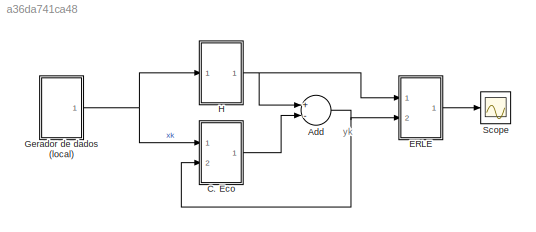
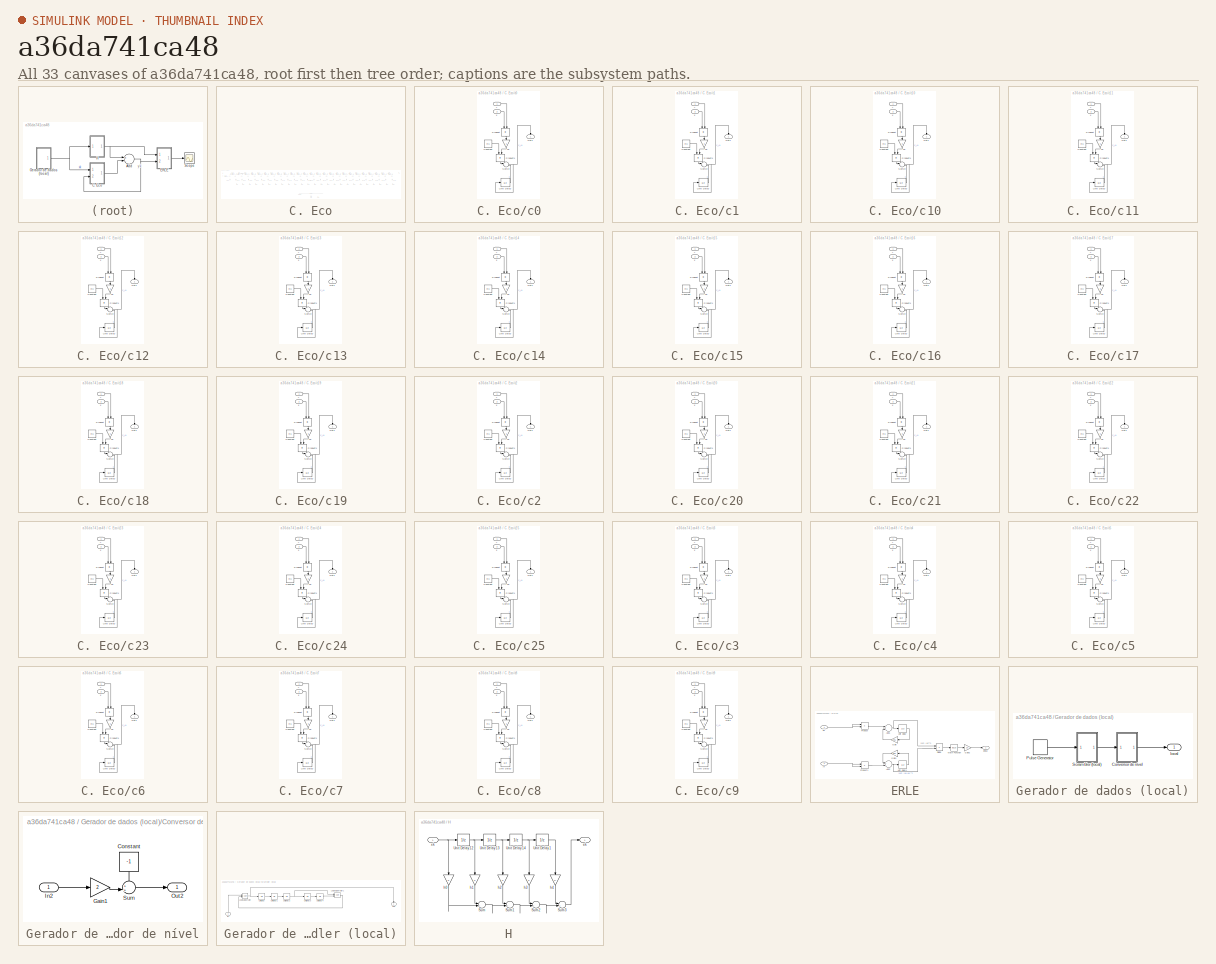
[diagram: thumbnail index - all 33 canvases of the model, root first then tree order]
MODEL slx_a36da741ca48
KIND model
BLOCK [Sum] Add
  InputSameDT = off
  Inputs = +-
  OutDataTypeStr = Inherit: Inherit via internal rule
  Ports = [2, 1]
  SaturateOnIntegerOverflow = off
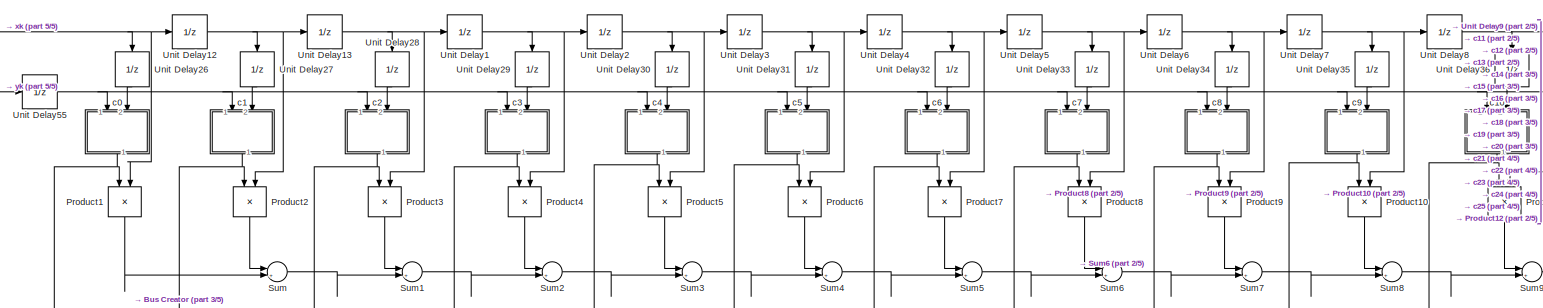
[diagram: C. Eco - part 1/5, top left region]
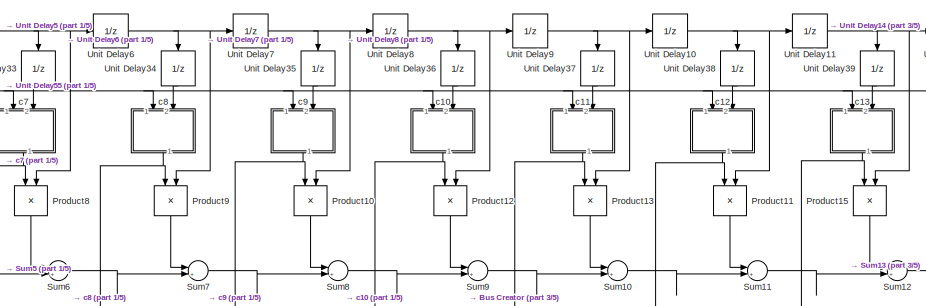
[diagram: C. Eco - part 2/5, top center region]
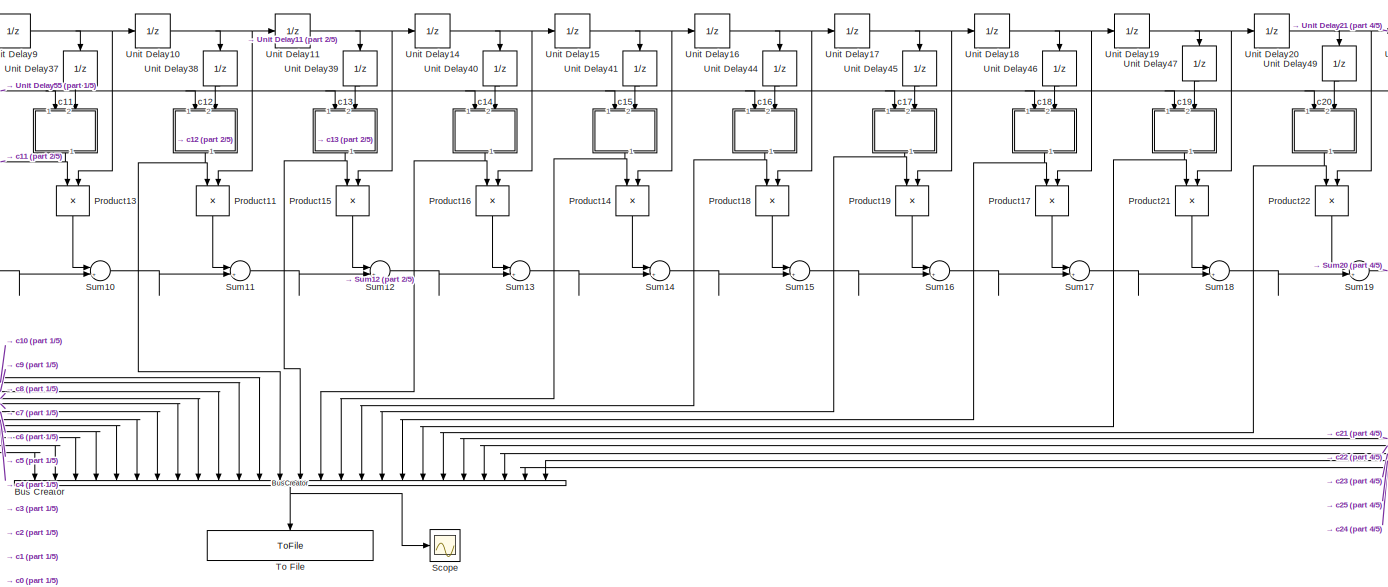
[diagram: C. Eco - part 3/5, center side, full height]
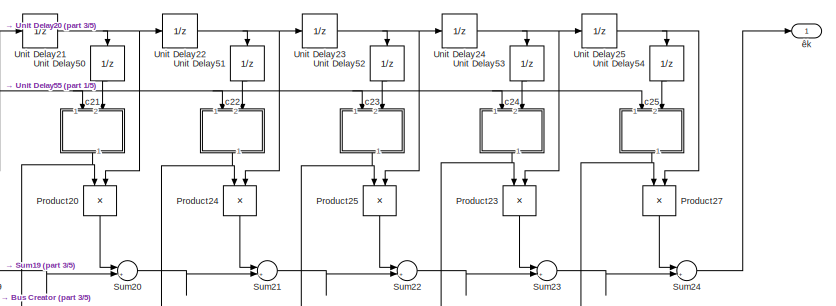
[diagram: C. Eco - part 4/5, top right region]
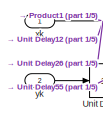
[diagram: C. Eco - part 5/5, top left region]
BLOCK [SubSystem] C. Eco
  FunctionWithSeparateData = off
  MaskHideContents = off
  MinAlgLoopOccurrences = off
  Opaque = off
  Ports = [2, 1]
  PropExecContextOutsideSubsystem = off
  RTWSystemCode = Auto
  RequestExecContextInheritance = off
BLOCK [BusCreator] C. Eco/Bus Creator
  DisplayOption = bar
  Inputs = 26
  Ports = [26, 1]
BLOCK [Product] C. Eco/Product1
  InputSameDT = off
  OutDataTypeStr = Inherit: Inherit via internal rule
  Ports = [2, 1]
  RndMeth = Floor
  SaturateOnIntegerOverflow = off
BLOCK [Product] C. Eco/Product10
  InputSameDT = off
  OutDataTypeStr = Inherit: Inherit via internal rule
  Ports = [2, 1]
  RndMeth = Floor
  SaturateOnIntegerOverflow = off
BLOCK [Product] C. Eco/Product11
  InputSameDT = off
  OutDataTypeStr = Inherit: Inherit via internal rule
  Ports = [2, 1]
  RndMeth = Floor
  SaturateOnIntegerOverflow = off
BLOCK [Product] C. Eco/Product12
  InputSameDT = off
  OutDataTypeStr = Inherit: Inherit via internal rule
  Ports = [2, 1]
  RndMeth = Floor
  SaturateOnIntegerOverflow = off
BLOCK [Product] C. Eco/Product13
  InputSameDT = off
  OutDataTypeStr = Inherit: Inherit via internal rule
  Ports = [2, 1]
  RndMeth = Floor
  SaturateOnIntegerOverflow = off
BLOCK [Product] C. Eco/Product14
  InputSameDT = off
  OutDataTypeStr = Inherit: Inherit via internal rule
  Ports = [2, 1]
  RndMeth = Floor
  SaturateOnIntegerOverflow = off
BLOCK [Product] C. Eco/Product15
  InputSameDT = off
  OutDataTypeStr = Inherit: Inherit via internal rule
  Ports = [2, 1]
  RndMeth = Floor
  SaturateOnIntegerOverflow = off
BLOCK [Product] C. Eco/Product16
  InputSameDT = off
  OutDataTypeStr = Inherit: Inherit via internal rule
  Ports = [2, 1]
  RndMeth = Floor
  SaturateOnIntegerOverflow = off
BLOCK [Product] C. Eco/Product17
  InputSameDT = off
  OutDataTypeStr = Inherit: Inherit via internal rule
  Ports = [2, 1]
  RndMeth = Floor
  SaturateOnIntegerOverflow = off
BLOCK [Product] C. Eco/Product18
  InputSameDT = off
  OutDataTypeStr = Inherit: Inherit via internal rule
  Ports = [2, 1]
  RndMeth = Floor
  SaturateOnIntegerOverflow = off
BLOCK [Product] C. Eco/Product19
  InputSameDT = off
  OutDataTypeStr = Inherit: Inherit via internal rule
  Ports = [2, 1]
  RndMeth = Floor
  SaturateOnIntegerOverflow = off
BLOCK [Product] C. Eco/Product2
  InputSameDT = off
  OutDataTypeStr = Inherit: Inherit via internal rule
  Ports = [2, 1]
  RndMeth = Floor
  SaturateOnIntegerOverflow = off
BLOCK [Product] C. Eco/Product20
  InputSameDT = off
  OutDataTypeStr = Inherit: Inherit via internal rule
  Ports = [2, 1]
  RndMeth = Floor
  SaturateOnIntegerOverflow = off
BLOCK [Product] C. Eco/Product21
  InputSameDT = off
  OutDataTypeStr = Inherit: Inherit via internal rule
  Ports = [2, 1]
  RndMeth = Floor
  SaturateOnIntegerOverflow = off
BLOCK [Product] C. Eco/Product22
  InputSameDT = off
  OutDataTypeStr = Inherit: Inherit via internal rule
  Ports = [2, 1]
  RndMeth = Floor
  SaturateOnIntegerOverflow = off
BLOCK [Product] C. Eco/Product23
  InputSameDT = off
  OutDataTypeStr = Inherit: Inherit via internal rule
  Ports = [2, 1]
  RndMeth = Floor
  SaturateOnIntegerOverflow = off
BLOCK [Product] C. Eco/Product24
  InputSameDT = off
  OutDataTypeStr = Inherit: Inherit via internal rule
  Ports = [2, 1]
  RndMeth = Floor
  SaturateOnIntegerOverflow = off
BLOCK [Product] C. Eco/Product25
  InputSameDT = off
  OutDataTypeStr = Inherit: Inherit via internal rule
  Ports = [2, 1]
  RndMeth = Floor
  SaturateOnIntegerOverflow = off
BLOCK [Product] C. Eco/Product27
  InputSameDT = off
  OutDataTypeStr = Inherit: Inherit via internal rule
  Ports = [2, 1]
  RndMeth = Floor
  SaturateOnIntegerOverflow = off
BLOCK [Product] C. Eco/Product3
  InputSameDT = off
  OutDataTypeStr = Inherit: Inherit via internal rule
  Ports = [2, 1]
  RndMeth = Floor
  SaturateOnIntegerOverflow = off
BLOCK [Product] C. Eco/Product4
  InputSameDT = off
  OutDataTypeStr = Inherit: Inherit via internal rule
  Ports = [2, 1]
  RndMeth = Floor
  SaturateOnIntegerOverflow = off
BLOCK [Product] C. Eco/Product5
  InputSameDT = off
  OutDataTypeStr = Inherit: Inherit via internal rule
  Ports = [2, 1]
  RndMeth = Floor
  SaturateOnIntegerOverflow = off
BLOCK [Product] C. Eco/Product6
  InputSameDT = off
  OutDataTypeStr = Inherit: Inherit via internal rule
  Ports = [2, 1]
  RndMeth = Floor
  SaturateOnIntegerOverflow = off
BLOCK [Product] C. Eco/Product7
  InputSameDT = off
  OutDataTypeStr = Inherit: Inherit via internal rule
  Ports = [2, 1]
  RndMeth = Floor
  SaturateOnIntegerOverflow = off
BLOCK [Product] C. Eco/Product8
  InputSameDT = off
  OutDataTypeStr = Inherit: Inherit via internal rule
  Ports = [2, 1]
  RndMeth = Floor
  SaturateOnIntegerOverflow = off
BLOCK [Product] C. Eco/Product9
  InputSameDT = off
  OutDataTypeStr = Inherit: Inherit via internal rule
  Ports = [2, 1]
  RndMeth = Floor
  SaturateOnIntegerOverflow = off
BLOCK [Scope] C. Eco/Scope
  DataFormat = StructureWithTime
  Floating = off
  NumInputPorts = 1
  Ports = [1]
  SampleTime = 0
  SaveName = ScopeData1
  ShowLegends = off
BLOCK [Sum] C. Eco/Sum
  IconShape = round
  InputSameDT = off
  Inputs = |++
  OutDataTypeStr = Inherit: Inherit via internal rule
  Ports = [2, 1]
  SaturateOnIntegerOverflow = off
BLOCK [Sum] C. Eco/Sum1
  IconShape = round
  InputSameDT = off
  Inputs = |++
  OutDataTypeStr = Inherit: Inherit via internal rule
  Ports = [2, 1]
  SaturateOnIntegerOverflow = off
BLOCK [Sum] C. Eco/Sum10
  IconShape = round
  InputSameDT = off
  Inputs = |++
  OutDataTypeStr = Inherit: Inherit via internal rule
  Ports = [2, 1]
  SaturateOnIntegerOverflow = off
BLOCK [Sum] C. Eco/Sum11
  IconShape = round
  InputSameDT = off
  Inputs = |++
  OutDataTypeStr = Inherit: Inherit via internal rule
  Ports = [2, 1]
  SaturateOnIntegerOverflow = off
BLOCK [Sum] C. Eco/Sum12
  IconShape = round
  InputSameDT = off
  Inputs = |++
  OutDataTypeStr = Inherit: Inherit via internal rule
  Ports = [2, 1]
  SaturateOnIntegerOverflow = off
BLOCK [Sum] C. Eco/Sum13
  IconShape = round
  InputSameDT = off
  Inputs = |++
  OutDataTypeStr = Inherit: Inherit via internal rule
  Ports = [2, 1]
  SaturateOnIntegerOverflow = off
BLOCK [Sum] C. Eco/Sum14
  IconShape = round
  InputSameDT = off
  Inputs = |++
  OutDataTypeStr = Inherit: Inherit via internal rule
  Ports = [2, 1]
  SaturateOnIntegerOverflow = off
BLOCK [Sum] C. Eco/Sum15
  IconShape = round
  InputSameDT = off
  Inputs = |++
  OutDataTypeStr = Inherit: Inherit via internal rule
  Ports = [2, 1]
  SaturateOnIntegerOverflow = off
BLOCK [Sum] C. Eco/Sum16
  IconShape = round
  InputSameDT = off
  Inputs = |++
  OutDataTypeStr = Inherit: Inherit via internal rule
  Ports = [2, 1]
  SaturateOnIntegerOverflow = off
BLOCK [Sum] C. Eco/Sum17
  IconShape = round
  InputSameDT = off
  Inputs = |++
  OutDataTypeStr = Inherit: Inherit via internal rule
  Ports = [2, 1]
  SaturateOnIntegerOverflow = off
BLOCK [Sum] C. Eco/Sum18
  IconShape = round
  InputSameDT = off
  Inputs = |++
  OutDataTypeStr = Inherit: Inherit via internal rule
  Ports = [2, 1]
  SaturateOnIntegerOverflow = off
BLOCK [Sum] C. Eco/Sum19
  IconShape = round
  InputSameDT = off
  Inputs = |++
  OutDataTypeStr = Inherit: Inherit via internal rule
  Ports = [2, 1]
  SaturateOnIntegerOverflow = off
BLOCK [Sum] C. Eco/Sum2
  IconShape = round
  InputSameDT = off
  Inputs = |++
  OutDataTypeStr = Inherit: Inherit via internal rule
  Ports = [2, 1]
  SaturateOnIntegerOverflow = off
BLOCK [Sum] C. Eco/Sum20
  IconShape = round
  InputSameDT = off
  Inputs = |++
  OutDataTypeStr = Inherit: Inherit via internal rule
  Ports = [2, 1]
  SaturateOnIntegerOverflow = off
BLOCK [Sum] C. Eco/Sum21
  IconShape = round
  InputSameDT = off
  Inputs = |++
  OutDataTypeStr = Inherit: Inherit via internal rule
  Ports = [2, 1]
  SaturateOnIntegerOverflow = off
BLOCK [Sum] C. Eco/Sum22
  IconShape = round
  InputSameDT = off
  Inputs = |++
  OutDataTypeStr = Inherit: Inherit via internal rule
  Ports = [2, 1]
  SaturateOnIntegerOverflow = off
BLOCK [Sum] C. Eco/Sum23
  IconShape = round
  InputSameDT = off
  Inputs = |++
  OutDataTypeStr = Inherit: Inherit via internal rule
  Ports = [2, 1]
  SaturateOnIntegerOverflow = off
BLOCK [Sum] C. Eco/Sum24
  IconShape = round
  InputSameDT = off
  Inputs = |++
  OutDataTypeStr = Inherit: Inherit via internal rule
  Ports = [2, 1]
  SaturateOnIntegerOverflow = off
BLOCK [Sum] C. Eco/Sum3
  IconShape = round
  InputSameDT = off
  Inputs = |++
  OutDataTypeStr = Inherit: Inherit via internal rule
  Ports = [2, 1]
  SaturateOnIntegerOverflow = off
BLOCK [Sum] C. Eco/Sum4
  IconShape = round
  InputSameDT = off
  Inputs = |++
  OutDataTypeStr = Inherit: Inherit via internal rule
  Ports = [2, 1]
  SaturateOnIntegerOverflow = off
BLOCK [Sum] C. Eco/Sum5
  IconShape = round
  InputSameDT = off
  Inputs = |++
  OutDataTypeStr = Inherit: Inherit via internal rule
  Ports = [2, 1]
  SaturateOnIntegerOverflow = off
BLOCK [Sum] C. Eco/Sum6
  IconShape = round
  InputSameDT = off
  Inputs = |++
  OutDataTypeStr = Inherit: Inherit via internal rule
  Ports = [2, 1]
  SaturateOnIntegerOverflow = off
BLOCK [Sum] C. Eco/Sum7
  IconShape = round
  InputSameDT = off
  Inputs = |++
  OutDataTypeStr = Inherit: Inherit via internal rule
  Ports = [2, 1]
  SaturateOnIntegerOverflow = off
BLOCK [Sum] C. Eco/Sum8
  IconShape = round
  InputSameDT = off
  Inputs = |++
  OutDataTypeStr = Inherit: Inherit via internal rule
  Ports = [2, 1]
  SaturateOnIntegerOverflow = off
BLOCK [Sum] C. Eco/Sum9
  IconShape = round
  InputSameDT = off
  Inputs = |++
  OutDataTypeStr = Inherit: Inherit via internal rule
  Ports = [2, 1]
  SaturateOnIntegerOverflow = off
BLOCK [ToFile] C. Eco/To File
  Filename = Coeficientes SC. Eco (5.5).mat
  MatrixName = c5_5
  Ports = [1]
  SaveFormat = Timeseries
BLOCK [UnitDelay] C. Eco/Unit Delay1
  InputProcessing = Elements as channels (sample based)
  SampleTime = -1
BLOCK [UnitDelay] C. Eco/Unit Delay10
  InputProcessing = Elements as channels (sample based)
  SampleTime = -1
BLOCK [UnitDelay] C. Eco/Unit Delay11
  InputProcessing = Elements as channels (sample based)
  SampleTime = -1
BLOCK [UnitDelay] C. Eco/Unit Delay12
  InputProcessing = Elements as channels (sample based)
  SampleTime = -1
BLOCK [UnitDelay] C. Eco/Unit Delay13
  InputProcessing = Elements as channels (sample based)
  SampleTime = -1
BLOCK [UnitDelay] C. Eco/Unit Delay14
  InputProcessing = Elements as channels (sample based)
  SampleTime = -1
BLOCK [UnitDelay] C. Eco/Unit Delay15
  InputProcessing = Elements as channels (sample based)
  SampleTime = -1
BLOCK [UnitDelay] C. Eco/Unit Delay16
  InputProcessing = Elements as channels (sample based)
  SampleTime = -1
BLOCK [UnitDelay] C. Eco/Unit Delay17
  InputProcessing = Elements as channels (sample based)
  SampleTime = -1
BLOCK [UnitDelay] C. Eco/Unit Delay18
  InputProcessing = Elements as channels (sample based)
  SampleTime = -1
BLOCK [UnitDelay] C. Eco/Unit Delay19
  InputProcessing = Elements as channels (sample based)
  SampleTime = -1
BLOCK [UnitDelay] C. Eco/Unit Delay2
  InputProcessing = Elements as channels (sample based)
  SampleTime = -1
BLOCK [UnitDelay] C. Eco/Unit Delay20
  InputProcessing = Elements as channels (sample based)
  SampleTime = -1
BLOCK [UnitDelay] C. Eco/Unit Delay21
  InputProcessing = Elements as channels (sample based)
  SampleTime = -1
BLOCK [UnitDelay] C. Eco/Unit Delay22
  InputProcessing = Elements as channels (sample based)
  SampleTime = -1
BLOCK [UnitDelay] C. Eco/Unit Delay23
  InputProcessing = Elements as channels (sample based)
  SampleTime = -1
BLOCK [UnitDelay] C. Eco/Unit Delay24
  InputProcessing = Elements as channels (sample based)
  SampleTime = -1
BLOCK [UnitDelay] C. Eco/Unit Delay25
  InputProcessing = Elements as channels (sample based)
  SampleTime = -1
BLOCK [UnitDelay] C. Eco/Unit Delay26
  InputProcessing = Elements as channels (sample based)
  SampleTime = -1
BLOCK [UnitDelay] C. Eco/Unit Delay27
  InputProcessing = Elements as channels (sample based)
  SampleTime = -1
BLOCK [UnitDelay] C. Eco/Unit Delay28
  InputProcessing = Elements as channels (sample based)
  SampleTime = -1
BLOCK [UnitDelay] C. Eco/Unit Delay29
  InputProcessing = Elements as channels (sample based)
  SampleTime = -1
BLOCK [UnitDelay] C. Eco/Unit Delay3
  InputProcessing = Elements as channels (sample based)
  SampleTime = -1
BLOCK [UnitDelay] C. Eco/Unit Delay30
  InputProcessing = Elements as channels (sample based)
  SampleTime = -1
BLOCK [UnitDelay] C. Eco/Unit Delay31
  InputProcessing = Elements as channels (sample based)
  SampleTime = -1
BLOCK [UnitDelay] C. Eco/Unit Delay32
  InputProcessing = Elements as channels (sample based)
  SampleTime = -1
BLOCK [UnitDelay] C. Eco/Unit Delay33
  InputProcessing = Elements as channels (sample based)
  SampleTime = -1
BLOCK [UnitDelay] C. Eco/Unit Delay34
  InputProcessing = Elements as channels (sample based)
  SampleTime = -1
BLOCK [UnitDelay] C. Eco/Unit Delay35
  InputProcessing = Elements as channels (sample based)
  SampleTime = -1
BLOCK [UnitDelay] C. Eco/Unit Delay36
  InputProcessing = Elements as channels (sample based)
  SampleTime = -1
BLOCK [UnitDelay] C. Eco/Unit Delay37
  InputProcessing = Elements as channels (sample based)
  SampleTime = -1
BLOCK [UnitDelay] C. Eco/Unit Delay38
  InputProcessing = Elements as channels (sample based)
  SampleTime = -1
BLOCK [UnitDelay] C. Eco/Unit Delay39
  InputProcessing = Elements as channels (sample based)
  SampleTime = -1
BLOCK [UnitDelay] C. Eco/Unit Delay4
  InputProcessing = Elements as channels (sample based)
  SampleTime = -1
BLOCK [UnitDelay] C. Eco/Unit Delay40
  InputProcessing = Elements as channels (sample based)
  SampleTime = -1
BLOCK [UnitDelay] C. Eco/Unit Delay41
  InputProcessing = Elements as channels (sample based)
  SampleTime = -1
BLOCK [UnitDelay] C. Eco/Unit Delay44
  InputProcessing = Elements as channels (sample based)
  SampleTime = -1
BLOCK [UnitDelay] C. Eco/Unit Delay45
  InputProcessing = Elements as channels (sample based)
  SampleTime = -1
BLOCK [UnitDelay] C. Eco/Unit Delay46
  InputProcessing = Elements as channels (sample based)
  SampleTime = -1
BLOCK [UnitDelay] C. Eco/Unit Delay47
  InputProcessing = Elements as channels (sample based)
  SampleTime = -1
BLOCK [UnitDelay] C. Eco/Unit Delay49
  InputProcessing = Elements as channels (sample based)
  SampleTime = -1
BLOCK [UnitDelay] C. Eco/Unit Delay5
  InputProcessing = Elements as channels (sample based)
  SampleTime = -1
BLOCK [UnitDelay] C. Eco/Unit Delay50
  InputProcessing = Elements as channels (sample based)
  SampleTime = -1
BLOCK [UnitDelay] C. Eco/Unit Delay51
  InputProcessing = Elements as channels (sample based)
  SampleTime = -1
BLOCK [UnitDelay] C. Eco/Unit Delay52
  InputProcessing = Elements as channels (sample based)
  SampleTime = -1
BLOCK [UnitDelay] C. Eco/Unit Delay53
  InputProcessing = Elements as channels (sample based)
  SampleTime = -1
BLOCK [UnitDelay] C. Eco/Unit Delay54
  InputProcessing = Elements as channels (sample based)
  SampleTime = -1
BLOCK [UnitDelay] C. Eco/Unit Delay55
  InputProcessing = Elements as channels (sample based)
  SampleTime = -1
BLOCK [UnitDelay] C. Eco/Unit Delay6
  InputProcessing = Elements as channels (sample based)
  SampleTime = -1
BLOCK [UnitDelay] C. Eco/Unit Delay7
  InputProcessing = Elements as channels (sample based)
  SampleTime = -1
BLOCK [UnitDelay] C. Eco/Unit Delay8
  InputProcessing = Elements as channels (sample based)
  SampleTime = -1
BLOCK [UnitDelay] C. Eco/Unit Delay9
  InputProcessing = Elements as channels (sample based)
  SampleTime = -1
BLOCK [SubSystem] C. Eco/c0
  FunctionWithSeparateData = off
  MaskHideContents = off
  MinAlgLoopOccurrences = off
  Opaque = off
  Ports = [2, 1]
  PropExecContextOutsideSubsystem = off
  RTWSystemCode = Auto
  RequestExecContextInheritance = off
BLOCK [Constant] C. Eco/c0/Constant
  Value = mu
BLOCK [Outport] C. Eco/c0/Out1
  IconDisplay = Port number
BLOCK [Product] C. Eco/c0/Product
  InputSameDT = off
  OutDataTypeStr = Inherit: Inherit via internal rule
  Ports = [2, 1]
  RndMeth = Floor
  SaturateOnIntegerOverflow = off
BLOCK [Product] C. Eco/c0/Product1
  InputSameDT = off
  OutDataTypeStr = Inherit: Inherit via internal rule
  Ports = [2, 1]
  RndMeth = Floor
  SaturateOnIntegerOverflow = off
BLOCK [Sum] C. Eco/c0/Sum14
  IconShape = round
  InputSameDT = off
  Inputs = |++
  OutDataTypeStr = Inherit: Inherit via internal rule
  Ports = [2, 1]
  SaturateOnIntegerOverflow = off
BLOCK [UnitDelay] C. Eco/c0/Unit Delay 
  InputProcessing = Elements as channels (sample based)
  SampleTime = -1
BLOCK [Gain] C. Eco/c0/h2
  Gain = 2
  OutDataTypeStr = Inherit: Inherit via internal rule
  ParamDataTypeStr = Inherit: Inherit via internal rule
  SaturateOnIntegerOverflow = off
BLOCK [Inport] C. Eco/c0/x
  IconDisplay = Port number
  Port = 2
BLOCK [Inport] C. Eco/c0/y
  IconDisplay = Port number
BLOCK [SubSystem] C. Eco/c1
  FunctionWithSeparateData = off
  MaskHideContents = off
  MinAlgLoopOccurrences = off
  Opaque = off
  Ports = [2, 1]
  PropExecContextOutsideSubsystem = off
  RTWSystemCode = Auto
  RequestExecContextInheritance = off
BLOCK [Constant] C. Eco/c1/Constant
  Value = mu
BLOCK [Outport] C. Eco/c1/Out1
  IconDisplay = Port number
BLOCK [Product] C. Eco/c1/Product
  InputSameDT = off
  OutDataTypeStr = Inherit: Inherit via internal rule
  Ports = [2, 1]
  RndMeth = Floor
  SaturateOnIntegerOverflow = off
BLOCK [Product] C. Eco/c1/Product1
  InputSameDT = off
  OutDataTypeStr = Inherit: Inherit via internal rule
  Ports = [2, 1]
  RndMeth = Floor
  SaturateOnIntegerOverflow = off
BLOCK [Sum] C. Eco/c1/Sum14
  IconShape = round
  InputSameDT = off
  Inputs = |++
  OutDataTypeStr = Inherit: Inherit via internal rule
  Ports = [2, 1]
  SaturateOnIntegerOverflow = off
BLOCK [UnitDelay] C. Eco/c1/Unit Delay 
  InputProcessing = Elements as channels (sample based)
  SampleTime = -1
BLOCK [Gain] C. Eco/c1/h2
  Gain = 2
  OutDataTypeStr = Inherit: Inherit via internal rule
  ParamDataTypeStr = Inherit: Inherit via internal rule
  SaturateOnIntegerOverflow = off
BLOCK [Inport] C. Eco/c1/x
  IconDisplay = Port number
  Port = 2
BLOCK [Inport] C. Eco/c1/y
  IconDisplay = Port number
BLOCK [SubSystem] C. Eco/c10
  FunctionWithSeparateData = off
  MaskHideContents = off
  MinAlgLoopOccurrences = off
  Opaque = off
  Ports = [2, 1]
  PropExecContextOutsideSubsystem = off
  RTWSystemCode = Auto
  RequestExecContextInheritance = off
BLOCK [Constant] C. Eco/c10/Constant
  Value = mu
BLOCK [Outport] C. Eco/c10/Out1
  IconDisplay = Port number
BLOCK [Product] C. Eco/c10/Product
  InputSameDT = off
  OutDataTypeStr = Inherit: Inherit via internal rule
  Ports = [2, 1]
  RndMeth = Floor
  SaturateOnIntegerOverflow = off
BLOCK [Product] C. Eco/c10/Product1
  InputSameDT = off
  OutDataTypeStr = Inherit: Inherit via internal rule
  Ports = [2, 1]
  RndMeth = Floor
  SaturateOnIntegerOverflow = off
BLOCK [Sum] C. Eco/c10/Sum14
  IconShape = round
  InputSameDT = off
  Inputs = |++
  OutDataTypeStr = Inherit: Inherit via internal rule
  Ports = [2, 1]
  SaturateOnIntegerOverflow = off
BLOCK [UnitDelay] C. Eco/c10/Unit Delay 
  InputProcessing = Elements as channels (sample based)
  SampleTime = -1
BLOCK [Gain] C. Eco/c10/h2
  Gain = 2
  OutDataTypeStr = Inherit: Inherit via internal rule
  ParamDataTypeStr = Inherit: Inherit via internal rule
  SaturateOnIntegerOverflow = off
BLOCK [Inport] C. Eco/c10/x
  IconDisplay = Port number
  Port = 2
BLOCK [Inport] C. Eco/c10/y
  IconDisplay = Port number
BLOCK [SubSystem] C. Eco/c11
  FunctionWithSeparateData = off
  MaskHideContents = off
  MinAlgLoopOccurrences = off
  Opaque = off
  Ports = [2, 1]
  PropExecContextOutsideSubsystem = off
  RTWSystemCode = Auto
  RequestExecContextInheritance = off
BLOCK [Constant] C. Eco/c11/Constant
  Value = mu
BLOCK [Outport] C. Eco/c11/Out1
  IconDisplay = Port number
BLOCK [Product] C. Eco/c11/Product
  InputSameDT = off
  OutDataTypeStr = Inherit: Inherit via internal rule
  Ports = [2, 1]
  RndMeth = Floor
  SaturateOnIntegerOverflow = off
BLOCK [Product] C. Eco/c11/Product1
  InputSameDT = off
  OutDataTypeStr = Inherit: Inherit via internal rule
  Ports = [2, 1]
  RndMeth = Floor
  SaturateOnIntegerOverflow = off
BLOCK [Sum] C. Eco/c11/Sum14
  IconShape = round
  InputSameDT = off
  Inputs = |++
  OutDataTypeStr = Inherit: Inherit via internal rule
  Ports = [2, 1]
  SaturateOnIntegerOverflow = off
BLOCK [UnitDelay] C. Eco/c11/Unit Delay 
  InputProcessing = Elements as channels (sample based)
  SampleTime = -1
BLOCK [Gain] C. Eco/c11/h2
  Gain = 2
  OutDataTypeStr = Inherit: Inherit via internal rule
  ParamDataTypeStr = Inherit: Inherit via internal rule
  SaturateOnIntegerOverflow = off
BLOCK [Inport] C. Eco/c11/x
  IconDisplay = Port number
  Port = 2
BLOCK [Inport] C. Eco/c11/y
  IconDisplay = Port number
BLOCK [SubSystem] C. Eco/c12
  FunctionWithSeparateData = off
  MaskHideContents = off
  MinAlgLoopOccurrences = off
  Opaque = off
  Ports = [2, 1]
  PropExecContextOutsideSubsystem = off
  RTWSystemCode = Auto
  RequestExecContextInheritance = off
BLOCK [Constant] C. Eco/c12/Constant
  Value = mu
BLOCK [Outport] C. Eco/c12/Out1
  IconDisplay = Port number
BLOCK [Product] C. Eco/c12/Product
  InputSameDT = off
  OutDataTypeStr = Inherit: Inherit via internal rule
  Ports = [2, 1]
  RndMeth = Floor
  SaturateOnIntegerOverflow = off
BLOCK [Product] C. Eco/c12/Product1
  InputSameDT = off
  OutDataTypeStr = Inherit: Inherit via internal rule
  Ports = [2, 1]
  RndMeth = Floor
  SaturateOnIntegerOverflow = off
BLOCK [Sum] C. Eco/c12/Sum14
  IconShape = round
  InputSameDT = off
  Inputs = |++
  OutDataTypeStr = Inherit: Inherit via internal rule
  Ports = [2, 1]
  SaturateOnIntegerOverflow = off
BLOCK [UnitDelay] C. Eco/c12/Unit Delay 
  InputProcessing = Elements as channels (sample based)
  SampleTime = -1
BLOCK [Gain] C. Eco/c12/h2
  Gain = 2
  OutDataTypeStr = Inherit: Inherit via internal rule
  ParamDataTypeStr = Inherit: Inherit via internal rule
  SaturateOnIntegerOverflow = off
BLOCK [Inport] C. Eco/c12/x
  IconDisplay = Port number
  Port = 2
BLOCK [Inport] C. Eco/c12/y
  IconDisplay = Port number
BLOCK [SubSystem] C. Eco/c13
  FunctionWithSeparateData = off
  MaskHideContents = off
  MinAlgLoopOccurrences = off
  Opaque = off
  Ports = [2, 1]
  PropExecContextOutsideSubsystem = off
  RTWSystemCode = Auto
  RequestExecContextInheritance = off
BLOCK [Constant] C. Eco/c13/Constant
  Value = mu
BLOCK [Outport] C. Eco/c13/Out1
  IconDisplay = Port number
BLOCK [Product] C. Eco/c13/Product
  InputSameDT = off
  OutDataTypeStr = Inherit: Inherit via internal rule
  Ports = [2, 1]
  RndMeth = Floor
  SaturateOnIntegerOverflow = off
BLOCK [Product] C. Eco/c13/Product1
  InputSameDT = off
  OutDataTypeStr = Inherit: Inherit via internal rule
  Ports = [2, 1]
  RndMeth = Floor
  SaturateOnIntegerOverflow = off
BLOCK [Sum] C. Eco/c13/Sum14
  IconShape = round
  InputSameDT = off
  Inputs = |++
  OutDataTypeStr = Inherit: Inherit via internal rule
  Ports = [2, 1]
  SaturateOnIntegerOverflow = off
BLOCK [UnitDelay] C. Eco/c13/Unit Delay 
  InputProcessing = Elements as channels (sample based)
  SampleTime = -1
BLOCK [Gain] C. Eco/c13/h2
  Gain = 2
  OutDataTypeStr = Inherit: Inherit via internal rule
  ParamDataTypeStr = Inherit: Inherit via internal rule
  SaturateOnIntegerOverflow = off
BLOCK [Inport] C. Eco/c13/x
  IconDisplay = Port number
  Port = 2
BLOCK [Inport] C. Eco/c13/y
  IconDisplay = Port number
BLOCK [SubSystem] C. Eco/c14
  FunctionWithSeparateData = off
  MaskHideContents = off
  MinAlgLoopOccurrences = off
  Opaque = off
  Ports = [2, 1]
  PropExecContextOutsideSubsystem = off
  RTWSystemCode = Auto
  RequestExecContextInheritance = off
BLOCK [Constant] C. Eco/c14/Constant
  Value = mu
BLOCK [Outport] C. Eco/c14/Out1
  IconDisplay = Port number
BLOCK [Product] C. Eco/c14/Product
  InputSameDT = off
  OutDataTypeStr = Inherit: Inherit via internal rule
  Ports = [2, 1]
  RndMeth = Floor
  SaturateOnIntegerOverflow = off
BLOCK [Product] C. Eco/c14/Product1
  InputSameDT = off
  OutDataTypeStr = Inherit: Inherit via internal rule
  Ports = [2, 1]
  RndMeth = Floor
  SaturateOnIntegerOverflow = off
BLOCK [Sum] C. Eco/c14/Sum14
  IconShape = round
  InputSameDT = off
  Inputs = |++
  OutDataTypeStr = Inherit: Inherit via internal rule
  Ports = [2, 1]
  SaturateOnIntegerOverflow = off
BLOCK [UnitDelay] C. Eco/c14/Unit Delay 
  InputProcessing = Elements as channels (sample based)
  SampleTime = -1
BLOCK [Gain] C. Eco/c14/h2
  Gain = 2
  OutDataTypeStr = Inherit: Inherit via internal rule
  ParamDataTypeStr = Inherit: Inherit via internal rule
  SaturateOnIntegerOverflow = off
BLOCK [Inport] C. Eco/c14/x
  IconDisplay = Port number
  Port = 2
BLOCK [Inport] C. Eco/c14/y
  IconDisplay = Port number
BLOCK [SubSystem] C. Eco/c15
  FunctionWithSeparateData = off
  MaskHideContents = off
  MinAlgLoopOccurrences = off
  Opaque = off
  Ports = [2, 1]
  PropExecContextOutsideSubsystem = off
  RTWSystemCode = Auto
  RequestExecContextInheritance = off
BLOCK [Constant] C. Eco/c15/Constant
  Value = mu
BLOCK [Outport] C. Eco/c15/Out1
  IconDisplay = Port number
BLOCK [Product] C. Eco/c15/Product
  InputSameDT = off
  OutDataTypeStr = Inherit: Inherit via internal rule
  Ports = [2, 1]
  RndMeth = Floor
  SaturateOnIntegerOverflow = off
BLOCK [Product] C. Eco/c15/Product1
  InputSameDT = off
  OutDataTypeStr = Inherit: Inherit via internal rule
  Ports = [2, 1]
  RndMeth = Floor
  SaturateOnIntegerOverflow = off
BLOCK [Sum] C. Eco/c15/Sum14
  IconShape = round
  InputSameDT = off
  Inputs = |++
  OutDataTypeStr = Inherit: Inherit via internal rule
  Ports = [2, 1]
  SaturateOnIntegerOverflow = off
BLOCK [UnitDelay] C. Eco/c15/Unit Delay 
  InputProcessing = Elements as channels (sample based)
  SampleTime = -1
BLOCK [Gain] C. Eco/c15/h2
  Gain = 2
  OutDataTypeStr = Inherit: Inherit via internal rule
  ParamDataTypeStr = Inherit: Inherit via internal rule
  SaturateOnIntegerOverflow = off
BLOCK [Inport] C. Eco/c15/x
  IconDisplay = Port number
  Port = 2
BLOCK [Inport] C. Eco/c15/y
  IconDisplay = Port number
BLOCK [SubSystem] C. Eco/c16
  FunctionWithSeparateData = off
  MaskHideContents = off
  MinAlgLoopOccurrences = off
  Opaque = off
  Ports = [2, 1]
  PropExecContextOutsideSubsystem = off
  RTWSystemCode = Auto
  RequestExecContextInheritance = off
BLOCK [Constant] C. Eco/c16/Constant
  Value = mu
BLOCK [Outport] C. Eco/c16/Out1
  IconDisplay = Port number
BLOCK [Product] C. Eco/c16/Product
  InputSameDT = off
  OutDataTypeStr = Inherit: Inherit via internal rule
  Ports = [2, 1]
  RndMeth = Floor
  SaturateOnIntegerOverflow = off
BLOCK [Product] C. Eco/c16/Product1
  InputSameDT = off
  OutDataTypeStr = Inherit: Inherit via internal rule
  Ports = [2, 1]
  RndMeth = Floor
  SaturateOnIntegerOverflow = off
BLOCK [Sum] C. Eco/c16/Sum14
  IconShape = round
  InputSameDT = off
  Inputs = |++
  OutDataTypeStr = Inherit: Inherit via internal rule
  Ports = [2, 1]
  SaturateOnIntegerOverflow = off
BLOCK [UnitDelay] C. Eco/c16/Unit Delay 
  InputProcessing = Elements as channels (sample based)
  SampleTime = -1
BLOCK [Gain] C. Eco/c16/h2
  Gain = 2
  OutDataTypeStr = Inherit: Inherit via internal rule
  ParamDataTypeStr = Inherit: Inherit via internal rule
  SaturateOnIntegerOverflow = off
BLOCK [Inport] C. Eco/c16/x
  IconDisplay = Port number
  Port = 2
BLOCK [Inport] C. Eco/c16/y
  IconDisplay = Port number
BLOCK [SubSystem] C. Eco/c17
  FunctionWithSeparateData = off
  MaskHideContents = off
  MinAlgLoopOccurrences = off
  Opaque = off
  Ports = [2, 1]
  PropExecContextOutsideSubsystem = off
  RTWSystemCode = Auto
  RequestExecContextInheritance = off
BLOCK [Constant] C. Eco/c17/Constant
  Value = mu
BLOCK [Outport] C. Eco/c17/Out1
  IconDisplay = Port number
BLOCK [Product] C. Eco/c17/Product
  InputSameDT = off
  OutDataTypeStr = Inherit: Inherit via internal rule
  Ports = [2, 1]
  RndMeth = Floor
  SaturateOnIntegerOverflow = off
BLOCK [Product] C. Eco/c17/Product1
  InputSameDT = off
  OutDataTypeStr = Inherit: Inherit via internal rule
  Ports = [2, 1]
  RndMeth = Floor
  SaturateOnIntegerOverflow = off
BLOCK [Sum] C. Eco/c17/Sum14
  IconShape = round
  InputSameDT = off
  Inputs = |++
  OutDataTypeStr = Inherit: Inherit via internal rule
  Ports = [2, 1]
  SaturateOnIntegerOverflow = off
BLOCK [UnitDelay] C. Eco/c17/Unit Delay 
  InputProcessing = Elements as channels (sample based)
  SampleTime = -1
BLOCK [Gain] C. Eco/c17/h2
  Gain = 2
  OutDataTypeStr = Inherit: Inherit via internal rule
  ParamDataTypeStr = Inherit: Inherit via internal rule
  SaturateOnIntegerOverflow = off
BLOCK [Inport] C. Eco/c17/x
  IconDisplay = Port number
  Port = 2
BLOCK [Inport] C. Eco/c17/y
  IconDisplay = Port number
BLOCK [SubSystem] C. Eco/c18
  FunctionWithSeparateData = off
  MaskHideContents = off
  MinAlgLoopOccurrences = off
  Opaque = off
  Ports = [2, 1]
  PropExecContextOutsideSubsystem = off
  RTWSystemCode = Auto
  RequestExecContextInheritance = off
BLOCK [Constant] C. Eco/c18/Constant
  Value = mu
BLOCK [Outport] C. Eco/c18/Out1
  IconDisplay = Port number
BLOCK [Product] C. Eco/c18/Product
  InputSameDT = off
  OutDataTypeStr = Inherit: Inherit via internal rule
  Ports = [2, 1]
  RndMeth = Floor
  SaturateOnIntegerOverflow = off
BLOCK [Product] C. Eco/c18/Product1
  InputSameDT = off
  OutDataTypeStr = Inherit: Inherit via internal rule
  Ports = [2, 1]
  RndMeth = Floor
  SaturateOnIntegerOverflow = off
BLOCK [Sum] C. Eco/c18/Sum14
  IconShape = round
  InputSameDT = off
  Inputs = |++
  OutDataTypeStr = Inherit: Inherit via internal rule
  Ports = [2, 1]
  SaturateOnIntegerOverflow = off
BLOCK [UnitDelay] C. Eco/c18/Unit Delay 
  InputProcessing = Elements as channels (sample based)
  SampleTime = -1
BLOCK [Gain] C. Eco/c18/h2
  Gain = 2
  OutDataTypeStr = Inherit: Inherit via internal rule
  ParamDataTypeStr = Inherit: Inherit via internal rule
  SaturateOnIntegerOverflow = off
BLOCK [Inport] C. Eco/c18/x
  IconDisplay = Port number
  Port = 2
BLOCK [Inport] C. Eco/c18/y
  IconDisplay = Port number
BLOCK [SubSystem] C. Eco/c19
  FunctionWithSeparateData = off
  MaskHideContents = off
  MinAlgLoopOccurrences = off
  Opaque = off
  Ports = [2, 1]
  PropExecContextOutsideSubsystem = off
  RTWSystemCode = Auto
  RequestExecContextInheritance = off
BLOCK [Constant] C. Eco/c19/Constant
  Value = mu
BLOCK [Outport] C. Eco/c19/Out1
  IconDisplay = Port number
BLOCK [Product] C. Eco/c19/Product
  InputSameDT = off
  OutDataTypeStr = Inherit: Inherit via internal rule
  Ports = [2, 1]
  RndMeth = Floor
  SaturateOnIntegerOverflow = off
BLOCK [Product] C. Eco/c19/Product1
  InputSameDT = off
  OutDataTypeStr = Inherit: Inherit via internal rule
  Ports = [2, 1]
  RndMeth = Floor
  SaturateOnIntegerOverflow = off
BLOCK [Sum] C. Eco/c19/Sum14
  IconShape = round
  InputSameDT = off
  Inputs = |++
  OutDataTypeStr = Inherit: Inherit via internal rule
  Ports = [2, 1]
  SaturateOnIntegerOverflow = off
BLOCK [UnitDelay] C. Eco/c19/Unit Delay 
  InputProcessing = Elements as channels (sample based)
  SampleTime = -1
BLOCK [Gain] C. Eco/c19/h2
  Gain = 2
  OutDataTypeStr = Inherit: Inherit via internal rule
  ParamDataTypeStr = Inherit: Inherit via internal rule
  SaturateOnIntegerOverflow = off
BLOCK [Inport] C. Eco/c19/x
  IconDisplay = Port number
  Port = 2
BLOCK [Inport] C. Eco/c19/y
  IconDisplay = Port number
BLOCK [SubSystem] C. Eco/c2
  FunctionWithSeparateData = off
  MaskHideContents = off
  MinAlgLoopOccurrences = off
  Opaque = off
  Ports = [2, 1]
  PropExecContextOutsideSubsystem = off
  RTWSystemCode = Auto
  RequestExecContextInheritance = off
BLOCK [Constant] C. Eco/c2/Constant
  Value = mu
BLOCK [Outport] C. Eco/c2/Out1
  IconDisplay = Port number
BLOCK [Product] C. Eco/c2/Product
  InputSameDT = off
  OutDataTypeStr = Inherit: Inherit via internal rule
  Ports = [2, 1]
  RndMeth = Floor
  SaturateOnIntegerOverflow = off
BLOCK [Product] C. Eco/c2/Product1
  InputSameDT = off
  OutDataTypeStr = Inherit: Inherit via internal rule
  Ports = [2, 1]
  RndMeth = Floor
  SaturateOnIntegerOverflow = off
BLOCK [Sum] C. Eco/c2/Sum14
  IconShape = round
  InputSameDT = off
  Inputs = |++
  OutDataTypeStr = Inherit: Inherit via internal rule
  Ports = [2, 1]
  SaturateOnIntegerOverflow = off
BLOCK [UnitDelay] C. Eco/c2/Unit Delay 
  InputProcessing = Elements as channels (sample based)
  SampleTime = -1
BLOCK [Gain] C. Eco/c2/h2
  Gain = 2
  OutDataTypeStr = Inherit: Inherit via internal rule
  ParamDataTypeStr = Inherit: Inherit via internal rule
  SaturateOnIntegerOverflow = off
BLOCK [Inport] C. Eco/c2/x
  IconDisplay = Port number
  Port = 2
BLOCK [Inport] C. Eco/c2/y
  IconDisplay = Port number
BLOCK [SubSystem] C. Eco/c20
  FunctionWithSeparateData = off
  MaskHideContents = off
  MinAlgLoopOccurrences = off
  Opaque = off
  Ports = [2, 1]
  PropExecContextOutsideSubsystem = off
  RTWSystemCode = Auto
  RequestExecContextInheritance = off
BLOCK [Constant] C. Eco/c20/Constant
  Value = mu
BLOCK [Outport] C. Eco/c20/Out1
  IconDisplay = Port number
BLOCK [Product] C. Eco/c20/Product
  InputSameDT = off
  OutDataTypeStr = Inherit: Inherit via internal rule
  Ports = [2, 1]
  RndMeth = Floor
  SaturateOnIntegerOverflow = off
BLOCK [Product] C. Eco/c20/Product1
  InputSameDT = off
  OutDataTypeStr = Inherit: Inherit via internal rule
  Ports = [2, 1]
  RndMeth = Floor
  SaturateOnIntegerOverflow = off
BLOCK [Sum] C. Eco/c20/Sum14
  IconShape = round
  InputSameDT = off
  Inputs = |++
  OutDataTypeStr = Inherit: Inherit via internal rule
  Ports = [2, 1]
  SaturateOnIntegerOverflow = off
BLOCK [UnitDelay] C. Eco/c20/Unit Delay 
  InputProcessing = Elements as channels (sample based)
  SampleTime = -1
BLOCK [Gain] C. Eco/c20/h2
  Gain = 2
  OutDataTypeStr = Inherit: Inherit via internal rule
  ParamDataTypeStr = Inherit: Inherit via internal rule
  SaturateOnIntegerOverflow = off
BLOCK [Inport] C. Eco/c20/x
  IconDisplay = Port number
  Port = 2
BLOCK [Inport] C. Eco/c20/y
  IconDisplay = Port number
BLOCK [SubSystem] C. Eco/c21
  FunctionWithSeparateData = off
  MaskHideContents = off
  MinAlgLoopOccurrences = off
  Opaque = off
  Ports = [2, 1]
  PropExecContextOutsideSubsystem = off
  RTWSystemCode = Auto
  RequestExecContextInheritance = off
BLOCK [Constant] C. Eco/c21/Constant
  Value = mu
BLOCK [Outport] C. Eco/c21/Out1
  IconDisplay = Port number
BLOCK [Product] C. Eco/c21/Product
  InputSameDT = off
  OutDataTypeStr = Inherit: Inherit via internal rule
  Ports = [2, 1]
  RndMeth = Floor
  SaturateOnIntegerOverflow = off
BLOCK [Product] C. Eco/c21/Product1
  InputSameDT = off
  OutDataTypeStr = Inherit: Inherit via internal rule
  Ports = [2, 1]
  RndMeth = Floor
  SaturateOnIntegerOverflow = off
BLOCK [Sum] C. Eco/c21/Sum14
  IconShape = round
  InputSameDT = off
  Inputs = |++
  OutDataTypeStr = Inherit: Inherit via internal rule
  Ports = [2, 1]
  SaturateOnIntegerOverflow = off
BLOCK [UnitDelay] C. Eco/c21/Unit Delay 
  InputProcessing = Elements as channels (sample based)
  SampleTime = -1
BLOCK [Gain] C. Eco/c21/h2
  Gain = 2
  OutDataTypeStr = Inherit: Inherit via internal rule
  ParamDataTypeStr = Inherit: Inherit via internal rule
  SaturateOnIntegerOverflow = off
BLOCK [Inport] C. Eco/c21/x
  IconDisplay = Port number
  Port = 2
BLOCK [Inport] C. Eco/c21/y
  IconDisplay = Port number
BLOCK [SubSystem] C. Eco/c22
  FunctionWithSeparateData = off
  MaskHideContents = off
  MinAlgLoopOccurrences = off
  Opaque = off
  Ports = [2, 1]
  PropExecContextOutsideSubsystem = off
  RTWSystemCode = Auto
  RequestExecContextInheritance = off
BLOCK [Constant] C. Eco/c22/Constant
  Value = mu
BLOCK [Outport] C. Eco/c22/Out1
  IconDisplay = Port number
BLOCK [Product] C. Eco/c22/Product
  InputSameDT = off
  OutDataTypeStr = Inherit: Inherit via internal rule
  Ports = [2, 1]
  RndMeth = Floor
  SaturateOnIntegerOverflow = off
BLOCK [Product] C. Eco/c22/Product1
  InputSameDT = off
  OutDataTypeStr = Inherit: Inherit via internal rule
  Ports = [2, 1]
  RndMeth = Floor
  SaturateOnIntegerOverflow = off
BLOCK [Sum] C. Eco/c22/Sum14
  IconShape = round
  InputSameDT = off
  Inputs = |++
  OutDataTypeStr = Inherit: Inherit via internal rule
  Ports = [2, 1]
  SaturateOnIntegerOverflow = off
BLOCK [UnitDelay] C. Eco/c22/Unit Delay 
  InputProcessing = Elements as channels (sample based)
  SampleTime = -1
BLOCK [Gain] C. Eco/c22/h2
  Gain = 2
  OutDataTypeStr = Inherit: Inherit via internal rule
  ParamDataTypeStr = Inherit: Inherit via internal rule
  SaturateOnIntegerOverflow = off
BLOCK [Inport] C. Eco/c22/x
  IconDisplay = Port number
  Port = 2
BLOCK [Inport] C. Eco/c22/y
  IconDisplay = Port number
BLOCK [SubSystem] C. Eco/c23
  FunctionWithSeparateData = off
  MaskHideContents = off
  MinAlgLoopOccurrences = off
  Opaque = off
  Ports = [2, 1]
  PropExecContextOutsideSubsystem = off
  RTWSystemCode = Auto
  RequestExecContextInheritance = off
BLOCK [Constant] C. Eco/c23/Constant
  Value = mu
BLOCK [Outport] C. Eco/c23/Out1
  IconDisplay = Port number
BLOCK [Product] C. Eco/c23/Product
  InputSameDT = off
  OutDataTypeStr = Inherit: Inherit via internal rule
  Ports = [2, 1]
  RndMeth = Floor
  SaturateOnIntegerOverflow = off
BLOCK [Product] C. Eco/c23/Product1
  InputSameDT = off
  OutDataTypeStr = Inherit: Inherit via internal rule
  Ports = [2, 1]
  RndMeth = Floor
  SaturateOnIntegerOverflow = off
BLOCK [Sum] C. Eco/c23/Sum14
  IconShape = round
  InputSameDT = off
  Inputs = |++
  OutDataTypeStr = Inherit: Inherit via internal rule
  Ports = [2, 1]
  SaturateOnIntegerOverflow = off
BLOCK [UnitDelay] C. Eco/c23/Unit Delay 
  InputProcessing = Elements as channels (sample based)
  SampleTime = -1
BLOCK [Gain] C. Eco/c23/h2
  Gain = 2
  OutDataTypeStr = Inherit: Inherit via internal rule
  ParamDataTypeStr = Inherit: Inherit via internal rule
  SaturateOnIntegerOverflow = off
BLOCK [Inport] C. Eco/c23/x
  IconDisplay = Port number
  Port = 2
BLOCK [Inport] C. Eco/c23/y
  IconDisplay = Port number
BLOCK [SubSystem] C. Eco/c24
  FunctionWithSeparateData = off
  MaskHideContents = off
  MinAlgLoopOccurrences = off
  Opaque = off
  Ports = [2, 1]
  PropExecContextOutsideSubsystem = off
  RTWSystemCode = Auto
  RequestExecContextInheritance = off
BLOCK [Constant] C. Eco/c24/Constant
  Value = mu
BLOCK [Outport] C. Eco/c24/Out1
  IconDisplay = Port number
BLOCK [Product] C. Eco/c24/Product
  InputSameDT = off
  OutDataTypeStr = Inherit: Inherit via internal rule
  Ports = [2, 1]
  RndMeth = Floor
  SaturateOnIntegerOverflow = off
BLOCK [Product] C. Eco/c24/Product1
  InputSameDT = off
  OutDataTypeStr = Inherit: Inherit via internal rule
  Ports = [2, 1]
  RndMeth = Floor
  SaturateOnIntegerOverflow = off
BLOCK [Sum] C. Eco/c24/Sum14
  IconShape = round
  InputSameDT = off
  Inputs = |++
  OutDataTypeStr = Inherit: Inherit via internal rule
  Ports = [2, 1]
  SaturateOnIntegerOverflow = off
BLOCK [UnitDelay] C. Eco/c24/Unit Delay 
  InputProcessing = Elements as channels (sample based)
  SampleTime = -1
BLOCK [Gain] C. Eco/c24/h2
  Gain = 2
  OutDataTypeStr = Inherit: Inherit via internal rule
  ParamDataTypeStr = Inherit: Inherit via internal rule
  SaturateOnIntegerOverflow = off
BLOCK [Inport] C. Eco/c24/x
  IconDisplay = Port number
  Port = 2
BLOCK [Inport] C. Eco/c24/y
  IconDisplay = Port number
BLOCK [SubSystem] C. Eco/c25
  FunctionWithSeparateData = off
  MaskHideContents = off
  MinAlgLoopOccurrences = off
  Opaque = off
  Ports = [2, 1]
  PropExecContextOutsideSubsystem = off
  RTWSystemCode = Auto
  RequestExecContextInheritance = off
BLOCK [Constant] C. Eco/c25/Constant
  Value = mu
BLOCK [Outport] C. Eco/c25/Out1
  IconDisplay = Port number
BLOCK [Product] C. Eco/c25/Product
  InputSameDT = off
  OutDataTypeStr = Inherit: Inherit via internal rule
  Ports = [2, 1]
  RndMeth = Floor
  SaturateOnIntegerOverflow = off
BLOCK [Product] C. Eco/c25/Product1
  InputSameDT = off
  OutDataTypeStr = Inherit: Inherit via internal rule
  Ports = [2, 1]
  RndMeth = Floor
  SaturateOnIntegerOverflow = off
BLOCK [Sum] C. Eco/c25/Sum14
  IconShape = round
  InputSameDT = off
  Inputs = |++
  OutDataTypeStr = Inherit: Inherit via internal rule
  Ports = [2, 1]
  SaturateOnIntegerOverflow = off
BLOCK [UnitDelay] C. Eco/c25/Unit Delay 
  InputProcessing = Elements as channels (sample based)
  SampleTime = -1
BLOCK [Gain] C. Eco/c25/h2
  Gain = 2
  OutDataTypeStr = Inherit: Inherit via internal rule
  ParamDataTypeStr = Inherit: Inherit via internal rule
  SaturateOnIntegerOverflow = off
BLOCK [Inport] C. Eco/c25/x
  IconDisplay = Port number
  Port = 2
BLOCK [Inport] C. Eco/c25/y
  IconDisplay = Port number
BLOCK [SubSystem] C. Eco/c3
  FunctionWithSeparateData = off
  MaskHideContents = off
  MinAlgLoopOccurrences = off
  Opaque = off
  Ports = [2, 1]
  PropExecContextOutsideSubsystem = off
  RTWSystemCode = Auto
  RequestExecContextInheritance = off
BLOCK [Constant] C. Eco/c3/Constant
  Value = mu
BLOCK [Outport] C. Eco/c3/Out1
  IconDisplay = Port number
BLOCK [Product] C. Eco/c3/Product
  InputSameDT = off
  OutDataTypeStr = Inherit: Inherit via internal rule
  Ports = [2, 1]
  RndMeth = Floor
  SaturateOnIntegerOverflow = off
BLOCK [Product] C. Eco/c3/Product1
  InputSameDT = off
  OutDataTypeStr = Inherit: Inherit via internal rule
  Ports = [2, 1]
  RndMeth = Floor
  SaturateOnIntegerOverflow = off
BLOCK [Sum] C. Eco/c3/Sum14
  IconShape = round
  InputSameDT = off
  Inputs = |++
  OutDataTypeStr = Inherit: Inherit via internal rule
  Ports = [2, 1]
  SaturateOnIntegerOverflow = off
BLOCK [UnitDelay] C. Eco/c3/Unit Delay 
  InputProcessing = Elements as channels (sample based)
  SampleTime = -1
BLOCK [Gain] C. Eco/c3/h2
  Gain = 2
  OutDataTypeStr = Inherit: Inherit via internal rule
  ParamDataTypeStr = Inherit: Inherit via internal rule
  SaturateOnIntegerOverflow = off
BLOCK [Inport] C. Eco/c3/x
  IconDisplay = Port number
  Port = 2
BLOCK [Inport] C. Eco/c3/y
  IconDisplay = Port number
BLOCK [SubSystem] C. Eco/c4
  FunctionWithSeparateData = off
  MaskHideContents = off
  MinAlgLoopOccurrences = off
  Opaque = off
  Ports = [2, 1]
  PropExecContextOutsideSubsystem = off
  RTWSystemCode = Auto
  RequestExecContextInheritance = off
BLOCK [Constant] C. Eco/c4/Constant
  Value = mu
BLOCK [Outport] C. Eco/c4/Out1
  IconDisplay = Port number
BLOCK [Product] C. Eco/c4/Product
  InputSameDT = off
  OutDataTypeStr = Inherit: Inherit via internal rule
  Ports = [2, 1]
  RndMeth = Floor
  SaturateOnIntegerOverflow = off
BLOCK [Product] C. Eco/c4/Product1
  InputSameDT = off
  OutDataTypeStr = Inherit: Inherit via internal rule
  Ports = [2, 1]
  RndMeth = Floor
  SaturateOnIntegerOverflow = off
BLOCK [Sum] C. Eco/c4/Sum14
  IconShape = round
  InputSameDT = off
  Inputs = |++
  OutDataTypeStr = Inherit: Inherit via internal rule
  Ports = [2, 1]
  SaturateOnIntegerOverflow = off
BLOCK [UnitDelay] C. Eco/c4/Unit Delay 
  InputProcessing = Elements as channels (sample based)
  SampleTime = -1
BLOCK [Gain] C. Eco/c4/h2
  Gain = 2
  OutDataTypeStr = Inherit: Inherit via internal rule
  ParamDataTypeStr = Inherit: Inherit via internal rule
  SaturateOnIntegerOverflow = off
BLOCK [Inport] C. Eco/c4/x
  IconDisplay = Port number
  Port = 2
BLOCK [Inport] C. Eco/c4/y
  IconDisplay = Port number
BLOCK [SubSystem] C. Eco/c5
  FunctionWithSeparateData = off
  MaskHideContents = off
  MinAlgLoopOccurrences = off
  Opaque = off
  Ports = [2, 1]
  PropExecContextOutsideSubsystem = off
  RTWSystemCode = Auto
  RequestExecContextInheritance = off
BLOCK [Constant] C. Eco/c5/Constant
  Value = mu
BLOCK [Outport] C. Eco/c5/Out1
  IconDisplay = Port number
BLOCK [Product] C. Eco/c5/Product
  InputSameDT = off
  OutDataTypeStr = Inherit: Inherit via internal rule
  Ports = [2, 1]
  RndMeth = Floor
  SaturateOnIntegerOverflow = off
BLOCK [Product] C. Eco/c5/Product1
  InputSameDT = off
  OutDataTypeStr = Inherit: Inherit via internal rule
  Ports = [2, 1]
  RndMeth = Floor
  SaturateOnIntegerOverflow = off
BLOCK [Sum] C. Eco/c5/Sum14
  IconShape = round
  InputSameDT = off
  Inputs = |++
  OutDataTypeStr = Inherit: Inherit via internal rule
  Ports = [2, 1]
  SaturateOnIntegerOverflow = off
BLOCK [UnitDelay] C. Eco/c5/Unit Delay 
  InputProcessing = Elements as channels (sample based)
  SampleTime = -1
BLOCK [Gain] C. Eco/c5/h2
  Gain = 2
  OutDataTypeStr = Inherit: Inherit via internal rule
  ParamDataTypeStr = Inherit: Inherit via internal rule
  SaturateOnIntegerOverflow = off
BLOCK [Inport] C. Eco/c5/x
  IconDisplay = Port number
  Port = 2
BLOCK [Inport] C. Eco/c5/y
  IconDisplay = Port number
BLOCK [SubSystem] C. Eco/c6
  FunctionWithSeparateData = off
  MaskHideContents = off
  MinAlgLoopOccurrences = off
  Opaque = off
  Ports = [2, 1]
  PropExecContextOutsideSubsystem = off
  RTWSystemCode = Auto
  RequestExecContextInheritance = off
BLOCK [Constant] C. Eco/c6/Constant
  Value = mu
BLOCK [Outport] C. Eco/c6/Out1
  IconDisplay = Port number
BLOCK [Product] C. Eco/c6/Product
  InputSameDT = off
  OutDataTypeStr = Inherit: Inherit via internal rule
  Ports = [2, 1]
  RndMeth = Floor
  SaturateOnIntegerOverflow = off
BLOCK [Product] C. Eco/c6/Product1
  InputSameDT = off
  OutDataTypeStr = Inherit: Inherit via internal rule
  Ports = [2, 1]
  RndMeth = Floor
  SaturateOnIntegerOverflow = off
BLOCK [Sum] C. Eco/c6/Sum14
  IconShape = round
  InputSameDT = off
  Inputs = |++
  OutDataTypeStr = Inherit: Inherit via internal rule
  Ports = [2, 1]
  SaturateOnIntegerOverflow = off
BLOCK [UnitDelay] C. Eco/c6/Unit Delay 
  InputProcessing = Elements as channels (sample based)
  SampleTime = -1
BLOCK [Gain] C. Eco/c6/h2
  Gain = 2
  OutDataTypeStr = Inherit: Inherit via internal rule
  ParamDataTypeStr = Inherit: Inherit via internal rule
  SaturateOnIntegerOverflow = off
BLOCK [Inport] C. Eco/c6/x
  IconDisplay = Port number
  Port = 2
BLOCK [Inport] C. Eco/c6/y
  IconDisplay = Port number
BLOCK [SubSystem] C. Eco/c7
  FunctionWithSeparateData = off
  MaskHideContents = off
  MinAlgLoopOccurrences = off
  Opaque = off
  Ports = [2, 1]
  PropExecContextOutsideSubsystem = off
  RTWSystemCode = Auto
  RequestExecContextInheritance = off
BLOCK [Constant] C. Eco/c7/Constant
  Value = mu
BLOCK [Outport] C. Eco/c7/Out1
  IconDisplay = Port number
BLOCK [Product] C. Eco/c7/Product
  InputSameDT = off
  OutDataTypeStr = Inherit: Inherit via internal rule
  Ports = [2, 1]
  RndMeth = Floor
  SaturateOnIntegerOverflow = off
BLOCK [Product] C. Eco/c7/Product1
  InputSameDT = off
  OutDataTypeStr = Inherit: Inherit via internal rule
  Ports = [2, 1]
  RndMeth = Floor
  SaturateOnIntegerOverflow = off
BLOCK [Sum] C. Eco/c7/Sum14
  IconShape = round
  InputSameDT = off
  Inputs = |++
  OutDataTypeStr = Inherit: Inherit via internal rule
  Ports = [2, 1]
  SaturateOnIntegerOverflow = off
BLOCK [UnitDelay] C. Eco/c7/Unit Delay 
  InputProcessing = Elements as channels (sample based)
  SampleTime = -1
BLOCK [Gain] C. Eco/c7/h2
  Gain = 2
  OutDataTypeStr = Inherit: Inherit via internal rule
  ParamDataTypeStr = Inherit: Inherit via internal rule
  SaturateOnIntegerOverflow = off
BLOCK [Inport] C. Eco/c7/x
  IconDisplay = Port number
  Port = 2
BLOCK [Inport] C. Eco/c7/y
  IconDisplay = Port number
BLOCK [SubSystem] C. Eco/c8
  FunctionWithSeparateData = off
  MaskHideContents = off
  MinAlgLoopOccurrences = off
  Opaque = off
  Ports = [2, 1]
  PropExecContextOutsideSubsystem = off
  RTWSystemCode = Auto
  RequestExecContextInheritance = off
BLOCK [Constant] C. Eco/c8/Constant
  Value = mu
BLOCK [Outport] C. Eco/c8/Out1
  IconDisplay = Port number
BLOCK [Product] C. Eco/c8/Product
  InputSameDT = off
  OutDataTypeStr = Inherit: Inherit via internal rule
  Ports = [2, 1]
  RndMeth = Floor
  SaturateOnIntegerOverflow = off
BLOCK [Product] C. Eco/c8/Product1
  InputSameDT = off
  OutDataTypeStr = Inherit: Inherit via internal rule
  Ports = [2, 1]
  RndMeth = Floor
  SaturateOnIntegerOverflow = off
BLOCK [Sum] C. Eco/c8/Sum14
  IconShape = round
  InputSameDT = off
  Inputs = |++
  OutDataTypeStr = Inherit: Inherit via internal rule
  Ports = [2, 1]
  SaturateOnIntegerOverflow = off
BLOCK [UnitDelay] C. Eco/c8/Unit Delay 
  InputProcessing = Elements as channels (sample based)
  SampleTime = -1
BLOCK [Gain] C. Eco/c8/h2
  Gain = 2
  OutDataTypeStr = Inherit: Inherit via internal rule
  ParamDataTypeStr = Inherit: Inherit via internal rule
  SaturateOnIntegerOverflow = off
BLOCK [Inport] C. Eco/c8/x
  IconDisplay = Port number
  Port = 2
BLOCK [Inport] C. Eco/c8/y
  IconDisplay = Port number
BLOCK [SubSystem] C. Eco/c9
  FunctionWithSeparateData = off
  MaskHideContents = off
  MinAlgLoopOccurrences = off
  Opaque = off
  Ports = [2, 1]
  PropExecContextOutsideSubsystem = off
  RTWSystemCode = Auto
  RequestExecContextInheritance = off
BLOCK [Constant] C. Eco/c9/Constant
  Value = mu
BLOCK [Outport] C. Eco/c9/Out1
  IconDisplay = Port number
BLOCK [Product] C. Eco/c9/Product
  InputSameDT = off
  OutDataTypeStr = Inherit: Inherit via internal rule
  Ports = [2, 1]
  RndMeth = Floor
  SaturateOnIntegerOverflow = off
BLOCK [Product] C. Eco/c9/Product1
  InputSameDT = off
  OutDataTypeStr = Inherit: Inherit via internal rule
  Ports = [2, 1]
  RndMeth = Floor
  SaturateOnIntegerOverflow = off
BLOCK [Sum] C. Eco/c9/Sum14
  IconShape = round
  InputSameDT = off
  Inputs = |++
  OutDataTypeStr = Inherit: Inherit via internal rule
  Ports = [2, 1]
  SaturateOnIntegerOverflow = off
BLOCK [UnitDelay] C. Eco/c9/Unit Delay 
  InputProcessing = Elements as channels (sample based)
  SampleTime = -1
BLOCK [Gain] C. Eco/c9/h2
  Gain = 2
  OutDataTypeStr = Inherit: Inherit via internal rule
  ParamDataTypeStr = Inherit: Inherit via internal rule
  SaturateOnIntegerOverflow = off
BLOCK [Inport] C. Eco/c9/x
  IconDisplay = Port number
  Port = 2
BLOCK [Inport] C. Eco/c9/y
  IconDisplay = Port number
BLOCK [Inport] C. Eco/xk
  IconDisplay = Port number
BLOCK [Inport] C. Eco/yk
  IconDisplay = Port number
  Port = 2
BLOCK [Outport] C. Eco/êk
  IconDisplay = Port number
BLOCK [SubSystem] ERLE
  FunctionWithSeparateData = off
  MaskHideContents = off
  MinAlgLoopOccurrences = off
  Opaque = off
  Ports = [2, 1]
  PropExecContextOutsideSubsystem = off
  RTWSystemCode = Auto
  RequestExecContextInheritance = off
BLOCK [Sum] ERLE/Add1
  InputSameDT = off
  OutDataTypeStr = Inherit: Inherit via internal rule
  Ports = [2, 1]
  SaturateOnIntegerOverflow = off
BLOCK [Sum] ERLE/Add2
  InputSameDT = off
  OutDataTypeStr = Inherit: Inherit via internal rule
  Ports = [2, 1]
  SaturateOnIntegerOverflow = off
BLOCK [Product] ERLE/Divide
  InputSameDT = off
  Inputs = */
  OutDataTypeStr = Inherit: Inherit via internal rule
  Ports = [2, 1]
  RndMeth = Floor
  SaturateOnIntegerOverflow = off
BLOCK [Outport] ERLE/ERLE
  IconDisplay = Port number
BLOCK [Gain] ERLE/Gain
  Gain = 0.95
  OutDataTypeStr = Inherit: Inherit via internal rule
  ParamDataTypeStr = Inherit: Inherit via internal rule
  SaturateOnIntegerOverflow = off
BLOCK [Gain] ERLE/Gain1
  Gain = 0.95
  OutDataTypeStr = Inherit: Inherit via internal rule
  ParamDataTypeStr = Inherit: Inherit via internal rule
  SaturateOnIntegerOverflow = off
BLOCK [Gain] ERLE/Gain2
  Gain = 10
  OutDataTypeStr = Inherit: Inherit via internal rule
  ParamDataTypeStr = Inherit: Inherit via internal rule
  SaturateOnIntegerOverflow = off
BLOCK [Math] ERLE/Math Function
  Operator = log10
  Ports = [1, 1]
BLOCK [Product] ERLE/Product
  InputSameDT = off
  OutDataTypeStr = Inherit: Inherit via internal rule
  Ports = [2, 1]
  RndMeth = Floor
  SaturateOnIntegerOverflow = off
BLOCK [Product] ERLE/Product1
  InputSameDT = off
  OutDataTypeStr = Inherit: Inherit via internal rule
  Ports = [2, 1]
  RndMeth = Floor
  SaturateOnIntegerOverflow = off
BLOCK [UnitDelay] ERLE/Unit Delay
  InputProcessing = Elements as channels (sample based)
  SampleTime = -1
BLOCK [UnitDelay] ERLE/Unit Delay1
  InputProcessing = Elements as channels (sample based)
  SampleTime = -1
BLOCK [Inport] ERLE/ek
  IconDisplay = Port number
BLOCK [Inport] ERLE/yk
  IconDisplay = Port number
  Port = 2
BLOCK [SubSystem] Gerador de dados (local)
  FunctionWithSeparateData = off
  MaskHideContents = off
  MinAlgLoopOccurrences = off
  Opaque = off
  Ports = [0, 1]
  PropExecContextOutsideSubsystem = off
  RTWSystemCode = Auto
  RequestExecContextInheritance = off
BLOCK [SubSystem] Gerador de dados (local)/Conversor de nível
  FunctionWithSeparateData = off
  MaskHideContents = off
  MinAlgLoopOccurrences = off
  Opaque = off
  Ports = [1, 1]
  PropExecContextOutsideSubsystem = off
  RTWSystemCode = Auto
  RequestExecContextInheritance = off
BLOCK [Constant] Gerador de dados (local)/Conversor de nível/Constant
  Value = -1
BLOCK [Gain] Gerador de dados (local)/Conversor de nível/Gain1
  Gain = 2
  OutDataTypeStr = Inherit: Inherit via internal rule
  ParamDataTypeStr = Inherit: Inherit via internal rule
  SaturateOnIntegerOverflow = off
BLOCK [Inport] Gerador de dados (local)/Conversor de nível/In2
  IconDisplay = Port number
BLOCK [Outport] Gerador de dados (local)/Conversor de nível/Out2
  IconDisplay = Port number
BLOCK [Sum] Gerador de dados (local)/Conversor de nível/Sum
  IconShape = round
  InputSameDT = off
  Inputs = ++|
  OutDataTypeStr = Inherit: Inherit via internal rule
  Ports = [2, 1]
  SaturateOnIntegerOverflow = off
BLOCK [DiscretePulseGenerator] Gerador de dados (local)/Pulse Generator
  Period = 2*T
  Ports = [0, 1]
  PulseType = Time based
  PulseWidth = 50
  SampleTime = St
BLOCK [SubSystem] Gerador de dados (local)/Scrambler (local)
  FunctionWithSeparateData = off
  MaskHideContents = off
  MinAlgLoopOccurrences = off
  Opaque = off
  Ports = [1, 1]
  PropExecContextOutsideSubsystem = off
  RTWSystemCode = Auto
  RequestExecContextInheritance = off
BLOCK [Inport] Gerador de dados (local)/Scrambler (local)/In1
  IconDisplay = Port number
BLOCK [Logic] Gerador de dados (local)/Scrambler (local)/Logical Operator
  AllPortsSameDT = off
  Operator = XOR
  OutDataTypeStr = fixdt(1,16)
  Ports = [2, 1]
BLOCK [Logic] Gerador de dados (local)/Scrambler (local)/Logical Operator1
  AllPortsSameDT = off
  Operator = XOR
  OutDataTypeStr = boolean
  Ports = [2, 1]
BLOCK [Outport] Gerador de dados (local)/Scrambler (local)/Out1
  IconDisplay = Port number
BLOCK [UnitDelay] Gerador de dados (local)/Scrambler (local)/Unit Delay
  InputProcessing = Elements as channels (sample based)
  SampleTime = -1
BLOCK [UnitDelay] Gerador de dados (local)/Scrambler (local)/Unit Delay1
  InputProcessing = Elements as channels (sample based)
  SampleTime = -1
BLOCK [UnitDelay] Gerador de dados (local)/Scrambler (local)/Unit Delay2
  InputProcessing = Elements as channels (sample based)
  SampleTime = -1
BLOCK [UnitDelay] Gerador de dados (local)/Scrambler (local)/Unit Delay3
  InputProcessing = Elements as channels (sample based)
  SampleTime = -1
BLOCK [UnitDelay] Gerador de dados (local)/Scrambler (local)/Unit Delay4
  InputProcessing = Elements as channels (sample based)
  SampleTime = -1
BLOCK [Outport] Gerador de dados (local)/local
  IconDisplay = Port number
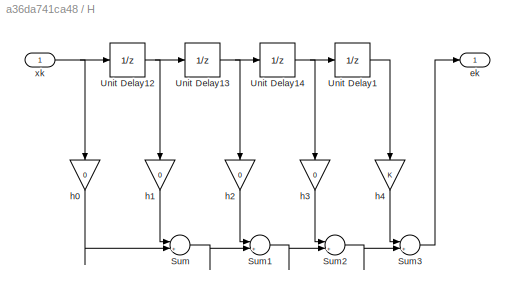
BLOCK [SubSystem] H
  FunctionWithSeparateData = off
  MaskHideContents = off
  MinAlgLoopOccurrences = off
  Opaque = off
  Ports = [1, 1]
  PropExecContextOutsideSubsystem = off
  RTWSystemCode = Auto
  RequestExecContextInheritance = off
BLOCK [Sum] H/Sum
  IconShape = round
  InputSameDT = off
  Inputs = |++
  OutDataTypeStr = Inherit: Inherit via internal rule
  Ports = [2, 1]
  SaturateOnIntegerOverflow = off
BLOCK [Sum] H/Sum1
  IconShape = round
  InputSameDT = off
  Inputs = |++
  OutDataTypeStr = Inherit: Inherit via internal rule
  Ports = [2, 1]
  SaturateOnIntegerOverflow = off
BLOCK [Sum] H/Sum2
  IconShape = round
  InputSameDT = off
  Inputs = |++
  OutDataTypeStr = Inherit: Inherit via internal rule
  Ports = [2, 1]
  SaturateOnIntegerOverflow = off
BLOCK [Sum] H/Sum3
  IconShape = round
  InputSameDT = off
  Inputs = |++
  OutDataTypeStr = Inherit: Inherit via internal rule
  Ports = [2, 1]
  SaturateOnIntegerOverflow = off
BLOCK [UnitDelay] H/Unit Delay1
  InputProcessing = Elements as channels (sample based)
  SampleTime = -1
BLOCK [UnitDelay] H/Unit Delay12
  InputProcessing = Elements as channels (sample based)
  SampleTime = -1
BLOCK [UnitDelay] H/Unit Delay13
  InputProcessing = Elements as channels (sample based)
  SampleTime = -1
BLOCK [UnitDelay] H/Unit Delay14
  InputProcessing = Elements as channels (sample based)
  SampleTime = -1
BLOCK [Outport] H/ek
  IconDisplay = Port number
BLOCK [Gain] H/h0
  Gain = 0
  OutDataTypeStr = Inherit: Inherit via internal rule
  ParamDataTypeStr = Inherit: Inherit via internal rule
  SaturateOnIntegerOverflow = off
BLOCK [Gain] H/h1
  Gain = 0
  OutDataTypeStr = Inherit: Inherit via internal rule
  ParamDataTypeStr = Inherit: Inherit via internal rule
  SaturateOnIntegerOverflow = off
BLOCK [Gain] H/h2
  Gain = 0
  OutDataTypeStr = Inherit: Inherit via internal rule
  ParamDataTypeStr = Inherit: Inherit via internal rule
  SaturateOnIntegerOverflow = off
BLOCK [Gain] H/h3
  Gain = 0
  OutDataTypeStr = Inherit: Inherit via internal rule
  ParamDataTypeStr = Inherit: Inherit via internal rule
  SaturateOnIntegerOverflow = off
BLOCK [Gain] H/h4
  OutDataTypeStr = Inherit: Inherit via internal rule
  ParamDataTypeStr = Inherit: Inherit via internal rule
  SaturateOnIntegerOverflow = off
BLOCK [Inport] H/xk
  IconDisplay = Port number
BLOCK [Scope] Scope 
  DataFormat = StructureWithTime
  Floating = off
  NumInputPorts = 1
  Ports = [1]
  SampleTime = 0
  ShowLegends = off
ANNOTATION (root): yk
ANNOTATION ERLE: sum (ek^2)
NET Add:1 -> C. Eco:2, ERLE:2
NET C. Eco/Bus Creator:1 -> C. Eco/Scope:1, C. Eco/To File:1
LINE C. Eco/Product10:1 -> C. Eco/Sum8:1
LINE C. Eco/Product11:1 -> C. Eco/Sum11:1
LINE C. Eco/Product12:1 -> C. Eco/Sum9:1
LINE C. Eco/Product13:1 -> C. Eco/Sum10:1
LINE C. Eco/Product14:1 -> C. Eco/Sum14:1
LINE C. Eco/Product15:1 -> C. Eco/Sum12:1
LINE C. Eco/Product16:1 -> C. Eco/Sum13:1
LINE C. Eco/Product17:1 -> C. Eco/Sum17:1
LINE C. Eco/Product18:1 -> C. Eco/Sum15:1
LINE C. Eco/Product19:1 -> C. Eco/Sum16:1
LINE C. Eco/Product1:1 -> C. Eco/Sum:2
LINE C. Eco/Product20:1 -> C. Eco/Sum20:1
LINE C. Eco/Product21:1 -> C. Eco/Sum18:1
LINE C. Eco/Product22:1 -> C. Eco/Sum19:1
LINE C. Eco/Product23:1 -> C. Eco/Sum23:1
LINE C. Eco/Product24:1 -> C. Eco/Sum21:1
LINE C. Eco/Product25:1 -> C. Eco/Sum22:1
LINE C. Eco/Product27:1 -> C. Eco/Sum24:1
LINE C. Eco/Product2:1 -> C. Eco/Sum:1
LINE C. Eco/Product3:1 -> C. Eco/Sum1:1
LINE C. Eco/Product4:1 -> C. Eco/Sum2:1
LINE C. Eco/Product5:1 -> C. Eco/Sum3:1
LINE C. Eco/Product6:1 -> C. Eco/Sum4:1
LINE C. Eco/Product7:1 -> C. Eco/Sum5:1
LINE C. Eco/Product8:1 -> C. Eco/Sum6:1
LINE C. Eco/Product9:1 -> C. Eco/Sum7:1
LINE C. Eco/Sum10:1 -> C. Eco/Sum11:2
LINE C. Eco/Sum11:1 -> C. Eco/Sum12:2
LINE C. Eco/Sum12:1 -> C. Eco/Sum13:2
LINE C. Eco/Sum13:1 -> C. Eco/Sum14:2
LINE C. Eco/Sum14:1 -> C. Eco/Sum15:2
LINE C. Eco/Sum15:1 -> C. Eco/Sum16:2
LINE C. Eco/Sum16:1 -> C. Eco/Sum17:2
LINE C. Eco/Sum17:1 -> C. Eco/Sum18:2
LINE C. Eco/Sum18:1 -> C. Eco/Sum19:2
LINE C. Eco/Sum19:1 -> C. Eco/Sum20:2
LINE C. Eco/Sum1:1 -> C. Eco/Sum2:2
LINE C. Eco/Sum20:1 -> C. Eco/Sum21:2
LINE C. Eco/Sum21:1 -> C. Eco/Sum22:2
LINE C. Eco/Sum22:1 -> C. Eco/Sum23:2
LINE C. Eco/Sum23:1 -> C. Eco/Sum24:2
LINE C. Eco/Sum24:1 -> C. Eco/êk:1
LINE C. Eco/Sum2:1 -> C. Eco/Sum3:2
LINE C. Eco/Sum3:1 -> C. Eco/Sum4:2
LINE C. Eco/Sum4:1 -> C. Eco/Sum5:2
LINE C. Eco/Sum5:1 -> C. Eco/Sum6:2
LINE C. Eco/Sum6:1 -> C. Eco/Sum7:2
LINE C. Eco/Sum7:1 -> C. Eco/Sum8:2
LINE C. Eco/Sum8:1 -> C. Eco/Sum9:2
LINE C. Eco/Sum9:1 -> C. Eco/Sum10:2
LINE C. Eco/Sum:1 -> C. Eco/Sum1:2
NET C. Eco/Unit Delay10:1 -> C. Eco/Product11:2, C. Eco/Unit Delay11:1, C. Eco/Unit Delay38:1
NET C. Eco/Unit Delay11:1 -> C. Eco/Product15:2, C. Eco/Unit Delay14:1, C. Eco/Unit Delay39:1
NET C. Eco/Unit Delay12:1 -> C. Eco/Product2:2, C. Eco/Unit Delay13:1, C. Eco/Unit Delay27:1
NET C. Eco/Unit Delay13:1 -> C. Eco/Product3:2, C. Eco/Unit Delay1:1, C. Eco/Unit Delay28:1
NET C. Eco/Unit Delay14:1 -> C. Eco/Product16:2, C. Eco/Unit Delay15:1, C. Eco/Unit Delay40:1
NET C. Eco/Unit Delay15:1 -> C. Eco/Product14:2, C. Eco/Unit Delay16:1, C. Eco/Unit Delay41:1
NET C. Eco/Unit Delay16:1 -> C. Eco/Product18:2, C. Eco/Unit Delay17:1, C. Eco/Unit Delay44:1
NET C. Eco/Unit Delay17:1 -> C. Eco/Product19:2, C. Eco/Unit Delay18:1, C. Eco/Unit Delay45:1
NET C. Eco/Unit Delay18:1 -> C. Eco/Product17:2, C. Eco/Unit Delay19:1, C. Eco/Unit Delay46:1
NET C. Eco/Unit Delay19:1 -> C. Eco/Product21:2, C. Eco/Unit Delay20:1, C. Eco/Unit Delay47:1
NET C. Eco/Unit Delay1:1 -> C. Eco/Product4:2, C. Eco/Unit Delay29:1, C. Eco/Unit Delay2:1
NET C. Eco/Unit Delay20:1 -> C. Eco/Product22:2, C. Eco/Unit Delay21:1, C. Eco/Unit Delay49:1
NET C. Eco/Unit Delay21:1 -> C. Eco/Product20:2, C. Eco/Unit Delay22:1, C. Eco/Unit Delay50:1
NET C. Eco/Unit Delay22:1 -> C. Eco/Product24:2, C. Eco/Unit Delay23:1, C. Eco/Unit Delay51:1
NET C. Eco/Unit Delay23:1 -> C. Eco/Product25:2, C. Eco/Unit Delay24:1, C. Eco/Unit Delay52:1
NET C. Eco/Unit Delay24:1 -> C. Eco/Product23:2, C. Eco/Unit Delay25:1, C. Eco/Unit Delay53:1
NET C. Eco/Unit Delay25:1 -> C. Eco/Product27:2, C. Eco/Unit Delay54:1
LINE C. Eco/Unit Delay26:1 -> C. Eco/c0:2
LINE C. Eco/Unit Delay27:1 -> C. Eco/c1:2
LINE C. Eco/Unit Delay28:1 -> C. Eco/c2:2
LINE C. Eco/Unit Delay29:1 -> C. Eco/c3:2
NET C. Eco/Unit Delay2:1 -> C. Eco/Product5:2, C. Eco/Unit Delay30:1, C. Eco/Unit Delay3:1
LINE C. Eco/Unit Delay30:1 -> C. Eco/c4:2
LINE C. Eco/Unit Delay31:1 -> C. Eco/c5:2
LINE C. Eco/Unit Delay32:1 -> C. Eco/c6:2
LINE C. Eco/Unit Delay33:1 -> C. Eco/c7:2
LINE C. Eco/Unit Delay34:1 -> C. Eco/c8:2
LINE C. Eco/Unit Delay35:1 -> C. Eco/c9:2
LINE C. Eco/Unit Delay36:1 -> C. Eco/c10:2
LINE C. Eco/Unit Delay37:1 -> C. Eco/c11:2
LINE C. Eco/Unit Delay38:1 -> C. Eco/c12:2
LINE C. Eco/Unit Delay39:1 -> C. Eco/c13:2
NET C. Eco/Unit Delay3:1 -> C. Eco/Product6:2, C. Eco/Unit Delay31:1, C. Eco/Unit Delay4:1
LINE C. Eco/Unit Delay40:1 -> C. Eco/c14:2
LINE C. Eco/Unit Delay41:1 -> C. Eco/c15:2
LINE C. Eco/Unit Delay44:1 -> C. Eco/c16:2
LINE C. Eco/Unit Delay45:1 -> C. Eco/c17:2
LINE C. Eco/Unit Delay46:1 -> C. Eco/c18:2
LINE C. Eco/Unit Delay47:1 -> C. Eco/c19:2
LINE C. Eco/Unit Delay49:1 -> C. Eco/c20:2
NET C. Eco/Unit Delay4:1 -> C. Eco/Product7:2, C. Eco/Unit Delay32:1, C. Eco/Unit Delay5:1
LINE C. Eco/Unit Delay50:1 -> C. Eco/c21:2
LINE C. Eco/Unit Delay51:1 -> C. Eco/c22:2
LINE C. Eco/Unit Delay52:1 -> C. Eco/c23:2
LINE C. Eco/Unit Delay53:1 -> C. Eco/c24:2
LINE C. Eco/Unit Delay54:1 -> C. Eco/c25:2
NET C. Eco/Unit Delay55:1 -> C. Eco/c0:1, C. Eco/c10:1, C. Eco/c11:1, C. Eco/c12:1, C. Eco/c13:1, C. Eco/c14:1, C. Eco/c15:1, C. Eco/c16:1, C. Eco/c17:1, C. Eco/c18:1, C. Eco/c19:1, C. Eco/c1:1, C. Eco/c20:1, C. Eco/c21:1, C. Eco/c22:1, C. Eco/c23:1, C. Eco/c24:1, C. Eco/c25:1, C. Eco/c2:1, C. Eco/c3:1, C. Eco/c4:1, C. Eco/c5:1, C. Eco/c6:1, C. Eco/c7:1, C. Eco/c8:1, C. Eco/c9:1
NET C. Eco/Unit Delay5:1 -> C. Eco/Product8:2, C. Eco/Unit Delay33:1, C. Eco/Unit Delay6:1
NET C. Eco/Unit Delay6:1 -> C. Eco/Product9:2, C. Eco/Unit Delay34:1, C. Eco/Unit Delay7:1
NET C. Eco/Unit Delay7:1 -> C. Eco/Product10:2, C. Eco/Unit Delay35:1, C. Eco/Unit Delay8:1
NET C. Eco/Unit Delay8:1 -> C. Eco/Product12:2, C. Eco/Unit Delay36:1, C. Eco/Unit Delay9:1
NET C. Eco/Unit Delay9:1 -> C. Eco/Product13:2, C. Eco/Unit Delay10:1, C. Eco/Unit Delay37:1
LINE C. Eco/c0/Constant:1 -> C. Eco/c0/Product1:1
LINE C. Eco/c0/Product1:1 -> C. Eco/c0/Sum14:1
LINE C. Eco/c0/Product:1 -> C. Eco/c0/h2:1
NET C. Eco/c0/Sum14:1 -> C. Eco/c0/Out1:1, C. Eco/c0/Unit Delay :1
LINE C. Eco/c0/Unit Delay :1 -> C. Eco/c0/Sum14:2
LINE C. Eco/c0/h2:1 -> C. Eco/c0/Product1:2
LINE C. Eco/c0/x:1 -> C. Eco/c0/Product:1
LINE C. Eco/c0/y:1 -> C. Eco/c0/Product:2
NET C. Eco/c0:1 -> C. Eco/Bus Creator:1, C. Eco/Product1:1
LINE C. Eco/c1/Constant:1 -> C. Eco/c1/Product1:1
LINE C. Eco/c1/Product1:1 -> C. Eco/c1/Sum14:1
LINE C. Eco/c1/Product:1 -> C. Eco/c1/h2:1
NET C. Eco/c1/Sum14:1 -> C. Eco/c1/Out1:1, C. Eco/c1/Unit Delay :1
LINE C. Eco/c1/Unit Delay :1 -> C. Eco/c1/Sum14:2
LINE C. Eco/c1/h2:1 -> C. Eco/c1/Product1:2
LINE C. Eco/c1/x:1 -> C. Eco/c1/Product:1
LINE C. Eco/c1/y:1 -> C. Eco/c1/Product:2
LINE C. Eco/c10/Constant:1 -> C. Eco/c10/Product1:1
LINE C. Eco/c10/Product1:1 -> C. Eco/c10/Sum14:1
LINE C. Eco/c10/Product:1 -> C. Eco/c10/h2:1
NET C. Eco/c10/Sum14:1 -> C. Eco/c10/Out1:1, C. Eco/c10/Unit Delay :1
LINE C. Eco/c10/Unit Delay :1 -> C. Eco/c10/Sum14:2
LINE C. Eco/c10/h2:1 -> C. Eco/c10/Product1:2
LINE C. Eco/c10/x:1 -> C. Eco/c10/Product:1
LINE C. Eco/c10/y:1 -> C. Eco/c10/Product:2
NET C. Eco/c10:1 -> C. Eco/Bus Creator:11, C. Eco/Product12:1
LINE C. Eco/c11/Constant:1 -> C. Eco/c11/Product1:1
LINE C. Eco/c11/Product1:1 -> C. Eco/c11/Sum14:1
LINE C. Eco/c11/Product:1 -> C. Eco/c11/h2:1
NET C. Eco/c11/Sum14:1 -> C. Eco/c11/Out1:1, C. Eco/c11/Unit Delay :1
LINE C. Eco/c11/Unit Delay :1 -> C. Eco/c11/Sum14:2
LINE C. Eco/c11/h2:1 -> C. Eco/c11/Product1:2
LINE C. Eco/c11/x:1 -> C. Eco/c11/Product:1
LINE C. Eco/c11/y:1 -> C. Eco/c11/Product:2
NET C. Eco/c11:1 -> C. Eco/Bus Creator:12, C. Eco/Product13:1
LINE C. Eco/c12/Constant:1 -> C. Eco/c12/Product1:1
LINE C. Eco/c12/Product1:1 -> C. Eco/c12/Sum14:1
LINE C. Eco/c12/Product:1 -> C. Eco/c12/h2:1
NET C. Eco/c12/Sum14:1 -> C. Eco/c12/Out1:1, C. Eco/c12/Unit Delay :1
LINE C. Eco/c12/Unit Delay :1 -> C. Eco/c12/Sum14:2
LINE C. Eco/c12/h2:1 -> C. Eco/c12/Product1:2
LINE C. Eco/c12/x:1 -> C. Eco/c12/Product:1
LINE C. Eco/c12/y:1 -> C. Eco/c12/Product:2
NET C. Eco/c12:1 -> C. Eco/Bus Creator:13, C. Eco/Product11:1
LINE C. Eco/c13/Constant:1 -> C. Eco/c13/Product1:1
LINE C. Eco/c13/Product1:1 -> C. Eco/c13/Sum14:1
LINE C. Eco/c13/Product:1 -> C. Eco/c13/h2:1
NET C. Eco/c13/Sum14:1 -> C. Eco/c13/Out1:1, C. Eco/c13/Unit Delay :1
LINE C. Eco/c13/Unit Delay :1 -> C. Eco/c13/Sum14:2
LINE C. Eco/c13/h2:1 -> C. Eco/c13/Product1:2
LINE C. Eco/c13/x:1 -> C. Eco/c13/Product:1
LINE C. Eco/c13/y:1 -> C. Eco/c13/Product:2
NET C. Eco/c13:1 -> C. Eco/Bus Creator:14, C. Eco/Product15:1
LINE C. Eco/c14/Constant:1 -> C. Eco/c14/Product1:1
LINE C. Eco/c14/Product1:1 -> C. Eco/c14/Sum14:1
LINE C. Eco/c14/Product:1 -> C. Eco/c14/h2:1
NET C. Eco/c14/Sum14:1 -> C. Eco/c14/Out1:1, C. Eco/c14/Unit Delay :1
LINE C. Eco/c14/Unit Delay :1 -> C. Eco/c14/Sum14:2
LINE C. Eco/c14/h2:1 -> C. Eco/c14/Product1:2
LINE C. Eco/c14/x:1 -> C. Eco/c14/Product:1
LINE C. Eco/c14/y:1 -> C. Eco/c14/Product:2
NET C. Eco/c14:1 -> C. Eco/Bus Creator:15, C. Eco/Product16:1
LINE C. Eco/c15/Constant:1 -> C. Eco/c15/Product1:1
LINE C. Eco/c15/Product1:1 -> C. Eco/c15/Sum14:1
LINE C. Eco/c15/Product:1 -> C. Eco/c15/h2:1
NET C. Eco/c15/Sum14:1 -> C. Eco/c15/Out1:1, C. Eco/c15/Unit Delay :1
LINE C. Eco/c15/Unit Delay :1 -> C. Eco/c15/Sum14:2
LINE C. Eco/c15/h2:1 -> C. Eco/c15/Product1:2
LINE C. Eco/c15/x:1 -> C. Eco/c15/Product:1
LINE C. Eco/c15/y:1 -> C. Eco/c15/Product:2
NET C. Eco/c15:1 -> C. Eco/Bus Creator:16, C. Eco/Product14:1
LINE C. Eco/c16/Constant:1 -> C. Eco/c16/Product1:1
LINE C. Eco/c16/Product1:1 -> C. Eco/c16/Sum14:1
LINE C. Eco/c16/Product:1 -> C. Eco/c16/h2:1
NET C. Eco/c16/Sum14:1 -> C. Eco/c16/Out1:1, C. Eco/c16/Unit Delay :1
LINE C. Eco/c16/Unit Delay :1 -> C. Eco/c16/Sum14:2
LINE C. Eco/c16/h2:1 -> C. Eco/c16/Product1:2
LINE C. Eco/c16/x:1 -> C. Eco/c16/Product:1
LINE C. Eco/c16/y:1 -> C. Eco/c16/Product:2
NET C. Eco/c16:1 -> C. Eco/Bus Creator:17, C. Eco/Product18:1
LINE C. Eco/c17/Constant:1 -> C. Eco/c17/Product1:1
LINE C. Eco/c17/Product1:1 -> C. Eco/c17/Sum14:1
LINE C. Eco/c17/Product:1 -> C. Eco/c17/h2:1
NET C. Eco/c17/Sum14:1 -> C. Eco/c17/Out1:1, C. Eco/c17/Unit Delay :1
LINE C. Eco/c17/Unit Delay :1 -> C. Eco/c17/Sum14:2
LINE C. Eco/c17/h2:1 -> C. Eco/c17/Product1:2
LINE C. Eco/c17/x:1 -> C. Eco/c17/Product:1
LINE C. Eco/c17/y:1 -> C. Eco/c17/Product:2
NET C. Eco/c17:1 -> C. Eco/Bus Creator:18, C. Eco/Product19:1
LINE C. Eco/c18/Constant:1 -> C. Eco/c18/Product1:1
LINE C. Eco/c18/Product1:1 -> C. Eco/c18/Sum14:1
LINE C. Eco/c18/Product:1 -> C. Eco/c18/h2:1
NET C. Eco/c18/Sum14:1 -> C. Eco/c18/Out1:1, C. Eco/c18/Unit Delay :1
LINE C. Eco/c18/Unit Delay :1 -> C. Eco/c18/Sum14:2
LINE C. Eco/c18/h2:1 -> C. Eco/c18/Product1:2
LINE C. Eco/c18/x:1 -> C. Eco/c18/Product:1
LINE C. Eco/c18/y:1 -> C. Eco/c18/Product:2
NET C. Eco/c18:1 -> C. Eco/Bus Creator:19, C. Eco/Product17:1
LINE C. Eco/c19/Constant:1 -> C. Eco/c19/Product1:1
LINE C. Eco/c19/Product1:1 -> C. Eco/c19/Sum14:1
LINE C. Eco/c19/Product:1 -> C. Eco/c19/h2:1
NET C. Eco/c19/Sum14:1 -> C. Eco/c19/Out1:1, C. Eco/c19/Unit Delay :1
LINE C. Eco/c19/Unit Delay :1 -> C. Eco/c19/Sum14:2
LINE C. Eco/c19/h2:1 -> C. Eco/c19/Product1:2
LINE C. Eco/c19/x:1 -> C. Eco/c19/Product:1
LINE C. Eco/c19/y:1 -> C. Eco/c19/Product:2
NET C. Eco/c19:1 -> C. Eco/Bus Creator:20, C. Eco/Product21:1
NET C. Eco/c1:1 -> C. Eco/Bus Creator:2, C. Eco/Product2:1
LINE C. Eco/c2/Constant:1 -> C. Eco/c2/Product1:1
LINE C. Eco/c2/Product1:1 -> C. Eco/c2/Sum14:1
LINE C. Eco/c2/Product:1 -> C. Eco/c2/h2:1
NET C. Eco/c2/Sum14:1 -> C. Eco/c2/Out1:1, C. Eco/c2/Unit Delay :1
LINE C. Eco/c2/Unit Delay :1 -> C. Eco/c2/Sum14:2
LINE C. Eco/c2/h2:1 -> C. Eco/c2/Product1:2
LINE C. Eco/c2/x:1 -> C. Eco/c2/Product:1
LINE C. Eco/c2/y:1 -> C. Eco/c2/Product:2
LINE C. Eco/c20/Constant:1 -> C. Eco/c20/Product1:1
LINE C. Eco/c20/Product1:1 -> C. Eco/c20/Sum14:1
LINE C. Eco/c20/Product:1 -> C. Eco/c20/h2:1
NET C. Eco/c20/Sum14:1 -> C. Eco/c20/Out1:1, C. Eco/c20/Unit Delay :1
LINE C. Eco/c20/Unit Delay :1 -> C. Eco/c20/Sum14:2
LINE C. Eco/c20/h2:1 -> C. Eco/c20/Product1:2
LINE C. Eco/c20/x:1 -> C. Eco/c20/Product:1
LINE C. Eco/c20/y:1 -> C. Eco/c20/Product:2
NET C. Eco/c20:1 -> C. Eco/Bus Creator:21, C. Eco/Product22:1
LINE C. Eco/c21/Constant:1 -> C. Eco/c21/Product1:1
LINE C. Eco/c21/Product1:1 -> C. Eco/c21/Sum14:1
LINE C. Eco/c21/Product:1 -> C. Eco/c21/h2:1
NET C. Eco/c21/Sum14:1 -> C. Eco/c21/Out1:1, C. Eco/c21/Unit Delay :1
LINE C. Eco/c21/Unit Delay :1 -> C. Eco/c21/Sum14:2
LINE C. Eco/c21/h2:1 -> C. Eco/c21/Product1:2
LINE C. Eco/c21/x:1 -> C. Eco/c21/Product:1
LINE C. Eco/c21/y:1 -> C. Eco/c21/Product:2
NET C. Eco/c21:1 -> C. Eco/Bus Creator:22, C. Eco/Product20:1
LINE C. Eco/c22/Constant:1 -> C. Eco/c22/Product1:1
LINE C. Eco/c22/Product1:1 -> C. Eco/c22/Sum14:1
LINE C. Eco/c22/Product:1 -> C. Eco/c22/h2:1
NET C. Eco/c22/Sum14:1 -> C. Eco/c22/Out1:1, C. Eco/c22/Unit Delay :1
LINE C. Eco/c22/Unit Delay :1 -> C. Eco/c22/Sum14:2
LINE C. Eco/c22/h2:1 -> C. Eco/c22/Product1:2
LINE C. Eco/c22/x:1 -> C. Eco/c22/Product:1
LINE C. Eco/c22/y:1 -> C. Eco/c22/Product:2
NET C. Eco/c22:1 -> C. Eco/Bus Creator:23, C. Eco/Product24:1
LINE C. Eco/c23/Constant:1 -> C. Eco/c23/Product1:1
LINE C. Eco/c23/Product1:1 -> C. Eco/c23/Sum14:1
LINE C. Eco/c23/Product:1 -> C. Eco/c23/h2:1
NET C. Eco/c23/Sum14:1 -> C. Eco/c23/Out1:1, C. Eco/c23/Unit Delay :1
LINE C. Eco/c23/Unit Delay :1 -> C. Eco/c23/Sum14:2
LINE C. Eco/c23/h2:1 -> C. Eco/c23/Product1:2
LINE C. Eco/c23/x:1 -> C. Eco/c23/Product:1
LINE C. Eco/c23/y:1 -> C. Eco/c23/Product:2
NET C. Eco/c23:1 -> C. Eco/Bus Creator:24, C. Eco/Product25:1
LINE C. Eco/c24/Constant:1 -> C. Eco/c24/Product1:1
LINE C. Eco/c24/Product1:1 -> C. Eco/c24/Sum14:1
LINE C. Eco/c24/Product:1 -> C. Eco/c24/h2:1
NET C. Eco/c24/Sum14:1 -> C. Eco/c24/Out1:1, C. Eco/c24/Unit Delay :1
LINE C. Eco/c24/Unit Delay :1 -> C. Eco/c24/Sum14:2
LINE C. Eco/c24/h2:1 -> C. Eco/c24/Product1:2
LINE C. Eco/c24/x:1 -> C. Eco/c24/Product:1
LINE C. Eco/c24/y:1 -> C. Eco/c24/Product:2
NET C. Eco/c24:1 -> C. Eco/Bus Creator:25, C. Eco/Product23:1
LINE C. Eco/c25/Constant:1 -> C. Eco/c25/Product1:1
LINE C. Eco/c25/Product1:1 -> C. Eco/c25/Sum14:1
LINE C. Eco/c25/Product:1 -> C. Eco/c25/h2:1
NET C. Eco/c25/Sum14:1 -> C. Eco/c25/Out1:1, C. Eco/c25/Unit Delay :1
LINE C. Eco/c25/Unit Delay :1 -> C. Eco/c25/Sum14:2
LINE C. Eco/c25/h2:1 -> C. Eco/c25/Product1:2
LINE C. Eco/c25/x:1 -> C. Eco/c25/Product:1
LINE C. Eco/c25/y:1 -> C. Eco/c25/Product:2
NET C. Eco/c25:1 -> C. Eco/Bus Creator:26, C. Eco/Product27:1
NET C. Eco/c2:1 -> C. Eco/Bus Creator:3, C. Eco/Product3:1
LINE C. Eco/c3/Constant:1 -> C. Eco/c3/Product1:1
LINE C. Eco/c3/Product1:1 -> C. Eco/c3/Sum14:1
LINE C. Eco/c3/Product:1 -> C. Eco/c3/h2:1
NET C. Eco/c3/Sum14:1 -> C. Eco/c3/Out1:1, C. Eco/c3/Unit Delay :1
LINE C. Eco/c3/Unit Delay :1 -> C. Eco/c3/Sum14:2
LINE C. Eco/c3/h2:1 -> C. Eco/c3/Product1:2
LINE C. Eco/c3/x:1 -> C. Eco/c3/Product:1
LINE C. Eco/c3/y:1 -> C. Eco/c3/Product:2
NET C. Eco/c3:1 -> C. Eco/Bus Creator:4, C. Eco/Product4:1
LINE C. Eco/c4/Constant:1 -> C. Eco/c4/Product1:1
LINE C. Eco/c4/Product1:1 -> C. Eco/c4/Sum14:1
LINE C. Eco/c4/Product:1 -> C. Eco/c4/h2:1
NET C. Eco/c4/Sum14:1 -> C. Eco/c4/Out1:1, C. Eco/c4/Unit Delay :1
LINE C. Eco/c4/Unit Delay :1 -> C. Eco/c4/Sum14:2
LINE C. Eco/c4/h2:1 -> C. Eco/c4/Product1:2
LINE C. Eco/c4/x:1 -> C. Eco/c4/Product:1
LINE C. Eco/c4/y:1 -> C. Eco/c4/Product:2
NET C. Eco/c4:1 -> C. Eco/Bus Creator:5, C. Eco/Product5:1
LINE C. Eco/c5/Constant:1 -> C. Eco/c5/Product1:1
LINE C. Eco/c5/Product1:1 -> C. Eco/c5/Sum14:1
LINE C. Eco/c5/Product:1 -> C. Eco/c5/h2:1
NET C. Eco/c5/Sum14:1 -> C. Eco/c5/Out1:1, C. Eco/c5/Unit Delay :1
LINE C. Eco/c5/Unit Delay :1 -> C. Eco/c5/Sum14:2
LINE C. Eco/c5/h2:1 -> C. Eco/c5/Product1:2
LINE C. Eco/c5/x:1 -> C. Eco/c5/Product:1
LINE C. Eco/c5/y:1 -> C. Eco/c5/Product:2
NET C. Eco/c5:1 -> C. Eco/Bus Creator:6, C. Eco/Product6:1
LINE C. Eco/c6/Constant:1 -> C. Eco/c6/Product1:1
LINE C. Eco/c6/Product1:1 -> C. Eco/c6/Sum14:1
LINE C. Eco/c6/Product:1 -> C. Eco/c6/h2:1
NET C. Eco/c6/Sum14:1 -> C. Eco/c6/Out1:1, C. Eco/c6/Unit Delay :1
LINE C. Eco/c6/Unit Delay :1 -> C. Eco/c6/Sum14:2
LINE C. Eco/c6/h2:1 -> C. Eco/c6/Product1:2
LINE C. Eco/c6/x:1 -> C. Eco/c6/Product:1
LINE C. Eco/c6/y:1 -> C. Eco/c6/Product:2
NET C. Eco/c6:1 -> C. Eco/Bus Creator:7, C. Eco/Product7:1
LINE C. Eco/c7/Constant:1 -> C. Eco/c7/Product1:1
LINE C. Eco/c7/Product1:1 -> C. Eco/c7/Sum14:1
LINE C. Eco/c7/Product:1 -> C. Eco/c7/h2:1
NET C. Eco/c7/Sum14:1 -> C. Eco/c7/Out1:1, C. Eco/c7/Unit Delay :1
LINE C. Eco/c7/Unit Delay :1 -> C. Eco/c7/Sum14:2
LINE C. Eco/c7/h2:1 -> C. Eco/c7/Product1:2
LINE C. Eco/c7/x:1 -> C. Eco/c7/Product:1
LINE C. Eco/c7/y:1 -> C. Eco/c7/Product:2
NET C. Eco/c7:1 -> C. Eco/Bus Creator:8, C. Eco/Product8:1
LINE C. Eco/c8/Constant:1 -> C. Eco/c8/Product1:1
LINE C. Eco/c8/Product1:1 -> C. Eco/c8/Sum14:1
LINE C. Eco/c8/Product:1 -> C. Eco/c8/h2:1
NET C. Eco/c8/Sum14:1 -> C. Eco/c8/Out1:1, C. Eco/c8/Unit Delay :1
LINE C. Eco/c8/Unit Delay :1 -> C. Eco/c8/Sum14:2
LINE C. Eco/c8/h2:1 -> C. Eco/c8/Product1:2
LINE C. Eco/c8/x:1 -> C. Eco/c8/Product:1
LINE C. Eco/c8/y:1 -> C. Eco/c8/Product:2
NET C. Eco/c8:1 -> C. Eco/Bus Creator:9, C. Eco/Product9:1
LINE C. Eco/c9/Constant:1 -> C. Eco/c9/Product1:1
LINE C. Eco/c9/Product1:1 -> C. Eco/c9/Sum14:1
LINE C. Eco/c9/Product:1 -> C. Eco/c9/h2:1
NET C. Eco/c9/Sum14:1 -> C. Eco/c9/Out1:1, C. Eco/c9/Unit Delay :1
LINE C. Eco/c9/Unit Delay :1 -> C. Eco/c9/Sum14:2
LINE C. Eco/c9/h2:1 -> C. Eco/c9/Product1:2
LINE C. Eco/c9/x:1 -> C. Eco/c9/Product:1
LINE C. Eco/c9/y:1 -> C. Eco/c9/Product:2
NET C. Eco/c9:1 -> C. Eco/Bus Creator:10, C. Eco/Product10:1
NET C. Eco/xk:1 -> C. Eco/Product1:2, C. Eco/Unit Delay12:1, C. Eco/Unit Delay26:1
LINE C. Eco/yk:1 -> C. Eco/Unit Delay55:1
LINE C. Eco:1 -> Add:2
NET ERLE/Add1:1 -> ERLE/Divide:1, ERLE/Unit Delay:1
NET ERLE/Add2:1 -> ERLE/Divide:2, ERLE/Unit Delay1:1
LINE ERLE/Divide:1 -> ERLE/Math Function:1
LINE ERLE/Gain1:1 -> ERLE/Add2:1
LINE ERLE/Gain2:1 -> ERLE/ERLE:1
LINE ERLE/Gain:1 -> ERLE/Add1:2
LINE ERLE/Math Function:1 -> ERLE/Gain2:1
LINE ERLE/Product1:1 -> ERLE/Add2:2
LINE ERLE/Product:1 -> ERLE/Add1:1
LINE ERLE/Unit Delay1:1 -> ERLE/Gain1:1
LINE ERLE/Unit Delay:1 -> ERLE/Gain:1
NET ERLE/ek:1 -> ERLE/Product:1, ERLE/Product:2
NET ERLE/yk:1 -> ERLE/Product1:1, ERLE/Product1:2
LINE ERLE:1 -> Scope :1
LINE Gerador de dados (local)/Conversor de nível/Constant:1 -> Gerador de dados (local)/Conversor de nível/Sum:1
LINE Gerador de dados (local)/Conversor de nível/Gain1:1 -> Gerador de dados (local)/Conversor de nível/Sum:2
LINE Gerador de dados (local)/Conversor de nível/In2:1 -> Gerador de dados (local)/Conversor de nível/Gain1:1
LINE Gerador de dados (local)/Conversor de nível/Sum:1 -> Gerador de dados (local)/Conversor de nível/Out2:1
LINE Gerador de dados (local)/Conversor de nível:1 -> Gerador de dados (local)/local:1
LINE Gerador de dados (local)/Pulse Generator:1 -> Gerador de dados (local)/Scrambler (local):1
LINE Gerador de dados (local)/Scrambler (local)/In1:1 -> Gerador de dados (local)/Scrambler (local)/Logical Operator:1
LINE Gerador de dados (local)/Scrambler (local)/Logical Operator1:1 -> Gerador de dados (local)/Scrambler (local)/Logical Operator:2
NET Gerador de dados (local)/Scrambler (local)/Logical Operator:1 -> Gerador de dados (local)/Scrambler (local)/Out1:1, Gerador de dados (local)/Scrambler (local)/Unit Delay:1
LINE Gerador de dados (local)/Scrambler (local)/Unit Delay1:1 -> Gerador de dados (local)/Scrambler (local)/Unit Delay2:1
NET Gerador de dados (local)/Scrambler (local)/Unit Delay2:1 -> Gerador de dados (local)/Scrambler (local)/Logical Operator1:1, Gerador de dados (local)/Scrambler (local)/Unit Delay3:1
LINE Gerador de dados (local)/Scrambler (local)/Unit Delay3:1 -> Gerador de dados (local)/Scrambler (local)/Unit Delay4:1
LINE Gerador de dados (local)/Scrambler (local)/Unit Delay4:1 -> Gerador de dados (local)/Scrambler (local)/Logical Operator1:2
LINE Gerador de dados (local)/Scrambler (local)/Unit Delay:1 -> Gerador de dados (local)/Scrambler (local)/Unit Delay1:1
LINE Gerador de dados (local)/Scrambler (local):1 -> Gerador de dados (local)/Conversor de nível:1
NET Gerador de dados (local):1 -> C. Eco:1, H:1
LINE H/Sum1:1 -> H/Sum2:2
LINE H/Sum2:1 -> H/Sum3:2
LINE H/Sum3:1 -> H/ek:1
LINE H/Sum:1 -> H/Sum1:2
NET H/Unit Delay12:1 -> H/Unit Delay13:1, H/h1:1
NET H/Unit Delay13:1 -> H/Unit Delay14:1, H/h2:1
NET H/Unit Delay14:1 -> H/Unit Delay1:1, H/h3:1
LINE H/Unit Delay1:1 -> H/h4:1
LINE H/h0:1 -> H/Sum:2
LINE H/h1:1 -> H/Sum:1
LINE H/h2:1 -> H/Sum1:1
LINE H/h3:1 -> H/Sum2:1
LINE H/h4:1 -> H/Sum3:1
NET H/xk:1 -> H/Unit Delay12:1, H/h0:1
NET H:1 -> Add:1, ERLE:1
note: NET lines group one-source signal fan-out (src -> all destinations, sorted); 1:1 wires keep LINE
